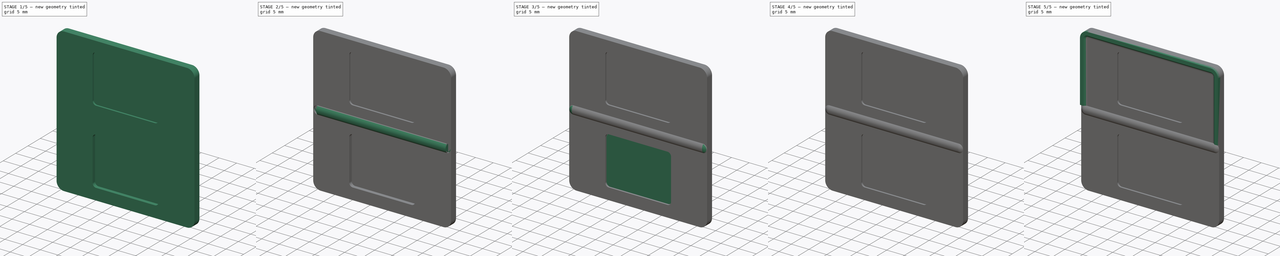
[diagram: build sequence overview — one tinted view per stage of 5, left to right]
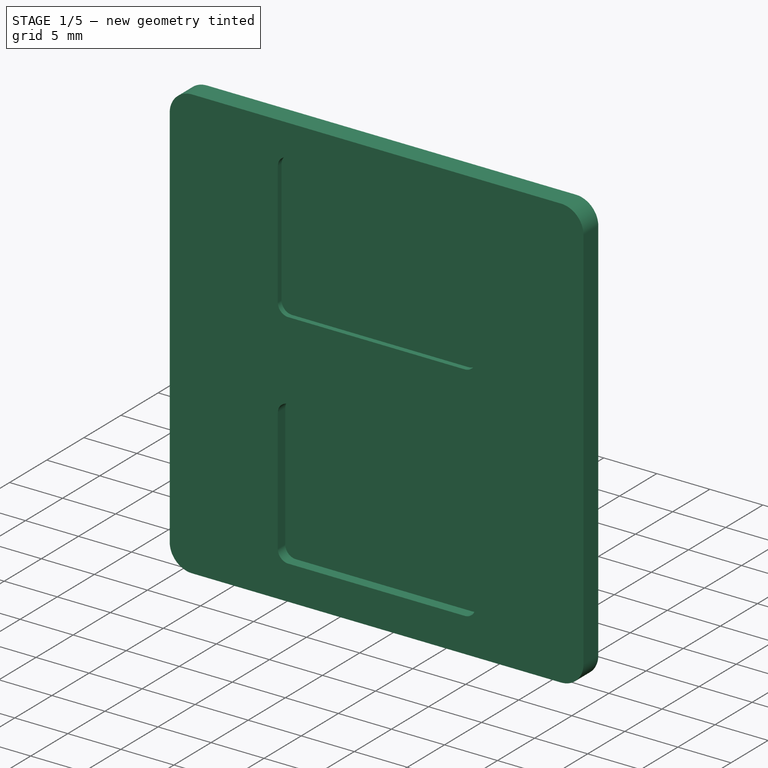
[diagram: stage 1 of 5 — iso view after this stage's code; geometry added in this stage tinted green]
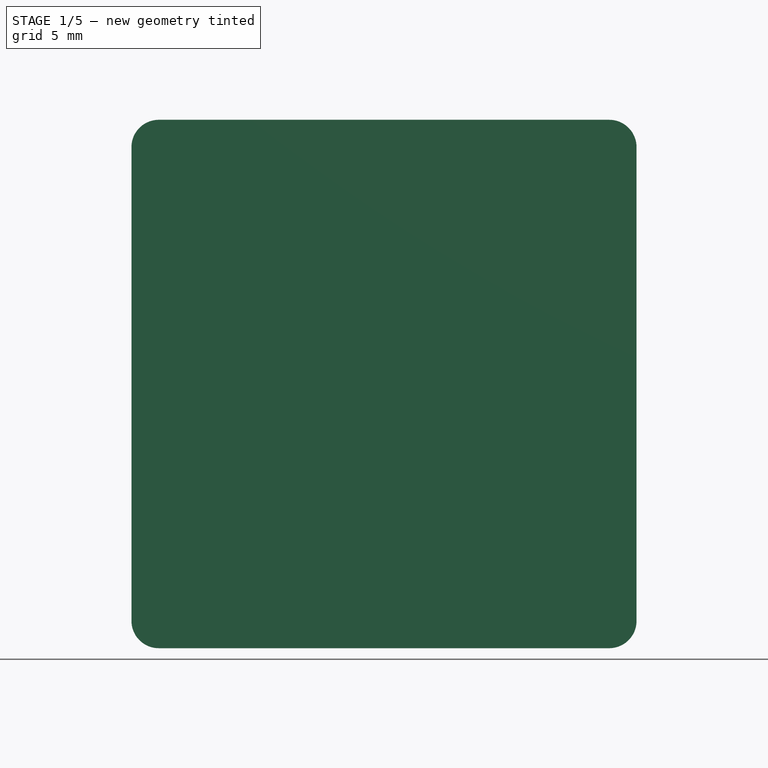
[diagram: stage 1 of 5 — front view after this stage's code; geometry added in this stage tinted green]
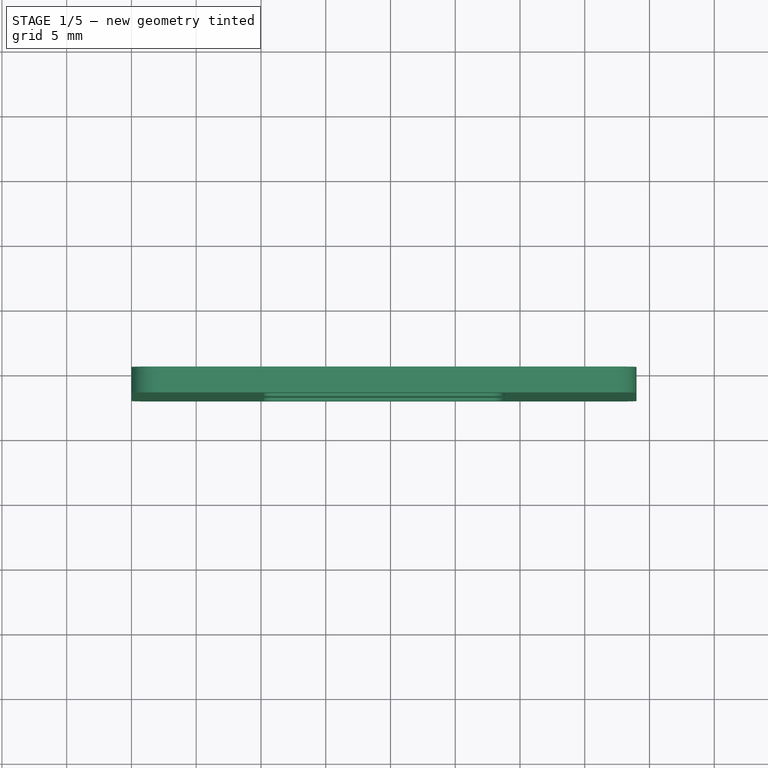
[diagram: stage 1 of 5 — top view after this stage's code; geometry added in this stage tinted green]
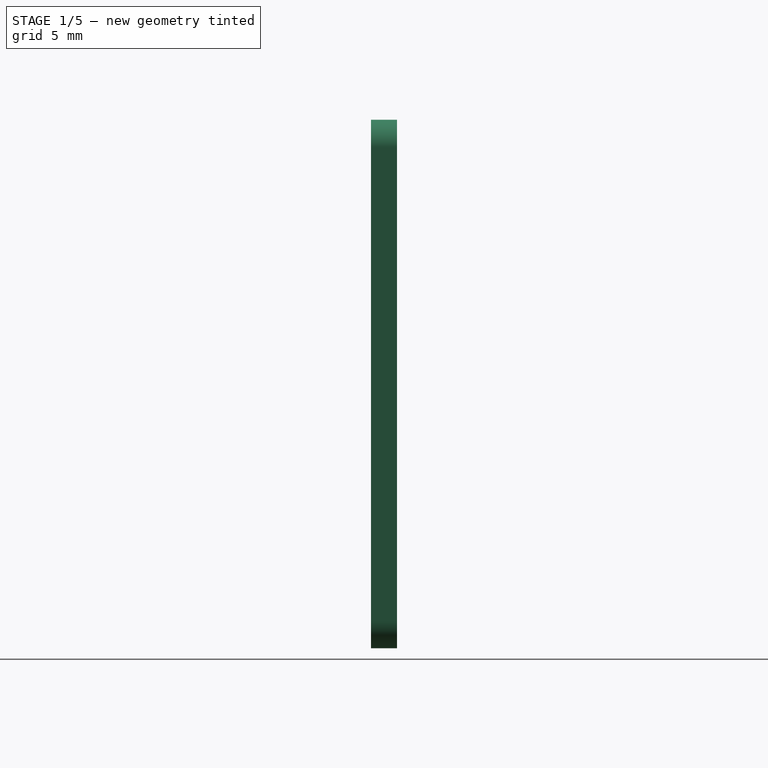
[diagram: stage 1 of 5 — right view after this stage's code; geometry added in this stage tinted green]
FCSTD DOCUMENT  (FreeCAD 0.20R29177 +426 (Git))
Label: DS Lite Icon
License: All rights reserved
LicenseURL: http://en.wikipedia.org/wiki/All_rights_reserved
objects: Sketcher::SketchObject×30, PartDesign::Pad×12, PartDesign::Revolution×10, PartDesign::Pocket×9, PartDesign::Body×3, PartDesign::FeatureBase×2, App::Part×1
note: 97 computed .brp shape members not serialized (recipe doc carries the construction recipe); baked Part::Feature solids carry a one-line shape summary decoded from their .brp

FEATURE [Sketcher::SketchObject] Sketch
  FullyConstrained = true
  MapMode = 5
  Placement = pos=(0,0,0) rot=(1,0,0;1.5708rad)
  Support = -> [XZ_Plane001]
  sketch-geometry (12):
    g0: LineSegment StartX=0 StartY=0 StartZ=0 EndX=39 EndY=0 EndZ=0
    g1: LineSegment StartX=39 StartY=0 StartZ=0 EndX=39 EndY=40.8 EndZ=0
    g2: LineSegment StartX=39 StartY=40.8 StartZ=0 EndX=0 EndY=40.8 EndZ=0
    g3: LineSegment StartX=0 StartY=40.8 StartZ=0 EndX=0 EndY=0 EndZ=0
    g4: LineSegment StartX=2.11 StartY=40.8 StartZ=0 EndX=36.89 EndY=40.8 EndZ=0
    g5: LineSegment StartX=39 StartY=38.69 StartZ=0 EndX=39 EndY=2.11 EndZ=0
    g6: LineSegment StartX=36.89 StartY=0 StartZ=0 EndX=2.11 EndY=0 EndZ=0
    g7: LineSegment StartX=0 StartY=2.11 StartZ=0 EndX=0 EndY=38.69 EndZ=0
    g8: ArcOfCircle CenterX=36.89 CenterY=2.11 CenterZ=0 NormalX=0 NormalY=0 NormalZ=1 AngleXU=0 Radius=2.11 StartAngle=4.71239 EndAngle=6.28319
    g9: ArcOfCircle CenterX=2.11 CenterY=2.11 CenterZ=0 NormalX=0 NormalY=0 NormalZ=1 AngleXU=0 Radius=2.11 StartAngle=3.14159 EndAngle=4.71239
    g10: ArcOfCircle CenterX=2.11 CenterY=38.69 CenterZ=0 NormalX=0 NormalY=0 NormalZ=1 AngleXU=0 Radius=2.11 StartAngle=1.5708 EndAngle=3.14159
    g11: ArcOfCircle CenterX=36.89 CenterY=38.69 CenterZ=0 NormalX=0 NormalY=0 NormalZ=1 AngleXU=0 Radius=2.11 StartAngle=9e-16 EndAngle=1.5708
  constraints (31):
    c: Coincident(g0,g1)
    c: Coincident(g1,g2)
    c: Coincident(g2,g3)
    c: Coincident(g3,g0)
    c: Horizontal(g0)
    c: Horizontal(g2)
    c: Vertical(g1)
    c: Vertical(g3)
    c: Coincident(g0,g-1)
    c: Distance(g0) = 39
    c: Distance(g1) = 40.8
    c: Horizontal(g4)
    c: Horizontal(g6)
    c: Vertical(g5)
    c: Vertical(g7)
    c: Tangent(g6,g8) = 1.5708
    c: Tangent(g5,g8) = 1.5708
    c: Tangent(g6,g9) = 1.5708
    c: Tangent(g7,g9) = 1.5708
    c: Tangent(g7,g10) = 1.5708
    c: Tangent(g4,g10) = 1.5708
    c: Tangent(g4,g11) = 1.5708
    c: Tangent(g5,g11) = 1.5708
    c: PointOnObject(g4,g2)
    c: PointOnObject(g7,g3)
    c: PointOnObject(g5,g1)
    c: PointOnObject(g6,g0)
    c: Equal(g8,g9)
    c: Equal(g10,g9)
    c: Equal(g11,g10)
    c: Radius(g11) = 2.11
FEATURE [PartDesign::Pad] Pad
  Direction = (0,-1,2e-16)
  Length = 2
  Length2 = 10
  Placement = pos=(0,0,0) rot=(1,0,0;1.5708rad)
  Profile = -> Sketch
  ReferenceAxis = -> Sketch [N_Axis]
  Type = 0
FEATURE [Sketcher::SketchObject] Sketch001
  ExternalGeometry = -> [Pad]
  FullyConstrained = true
  MapMode = 5
  Placement = pos=(0,-2,9e-16) rot=(1,0,0;1.5708rad)
  Support = -> [Pad]
  sketch-geometry (26):
    g0: LineSegment StartX=10.19 StartY=37.85 StartZ=0 EndX=28.81 EndY=37.85 EndZ=0
    g1: LineSegment StartX=28.81 StartY=37.85 StartZ=0 EndX=28.81 EndY=24.25 EndZ=0
    g2: LineSegment StartX=28.81 StartY=24.25 StartZ=0 EndX=10.19 EndY=24.25 EndZ=0
    g3: LineSegment StartX=10.19 StartY=24.25 StartZ=0 EndX=10.19 EndY=37.85 EndZ=0
    g4: LineSegment StartX=10.19 StartY=16.85 StartZ=0 EndX=28.81 EndY=16.85 EndZ=0
    g5: LineSegment StartX=28.81 StartY=16.85 StartZ=0 EndX=28.81 EndY=3.25 EndZ=0
    g6: LineSegment StartX=28.81 StartY=3.25 StartZ=0 EndX=10.19 EndY=3.25 EndZ=0
    g7: LineSegment StartX=10.19 StartY=3.25 StartZ=0 EndX=10.19 EndY=16.85 EndZ=0
    g8: LineSegment StartX=19.5 StartY=3.25 StartZ=0 EndX=19.5 EndY=0 EndZ=0
    g9: LineSegment StartX=19.5 StartY=37.85 StartZ=0 EndX=19.5 EndY=40.8 EndZ=0
    g10: LineSegment StartX=11.19 StartY=16.85 StartZ=0 EndX=27.81 EndY=16.85 EndZ=0
    g11: LineSegment StartX=28.81 StartY=15.85 StartZ=0 EndX=28.81 EndY=4.25 EndZ=0
    g12: LineSegment StartX=27.81 StartY=3.25 StartZ=0 EndX=11.19 EndY=3.25 EndZ=0
    g13: LineSegment StartX=10.19 StartY=4.25 StartZ=0 EndX=10.19 EndY=15.85 EndZ=0
    g14: LineSegment StartX=11.19 StartY=37.85 StartZ=0 EndX=27.81 EndY=37.85 EndZ=0
    g15: LineSegment StartX=28.81 StartY=36.85 StartZ=0 EndX=28.81 EndY=25.25 EndZ=0
    g16: LineSegment StartX=27.81 StartY=24.25 StartZ=0 EndX=11.19 EndY=24.25 EndZ=0
    g17: LineSegment StartX=10.19 StartY=25.25 StartZ=0 EndX=10.19 EndY=36.85 EndZ=0
    g18: ArcOfCircle CenterX=11.19 CenterY=36.85 CenterZ=0 NormalX=0 NormalY=0 NormalZ=1 AngleXU=0 Radius=1 StartAngle=1.5708 EndAngle=3.14159
    g19: ArcOfCircle CenterX=27.81 CenterY=36.85 CenterZ=0 NormalX=0 NormalY=0 NormalZ=1 AngleXU=0 Radius=1 StartAngle=-2.7e-15 EndAngle=1.5708
    g20: ArcOfCircle CenterX=27.81 CenterY=25.25 CenterZ=0 NormalX=0 NormalY=0 NormalZ=1 AngleXU=0 Radius=1 StartAngle=4.71239 EndAngle=6.28319
    g21: ArcOfCircle CenterX=11.19 CenterY=25.25 CenterZ=0 NormalX=0 NormalY=0 NormalZ=1 AngleXU=0 Radius=1 StartAngle=3.14159 EndAngle=4.71239
    g22: ArcOfCircle CenterX=11.19 CenterY=15.85 CenterZ=0 NormalX=0 NormalY=0 NormalZ=1 AngleXU=0 Radius=1 StartAngle=1.5708 EndAngle=3.14159
    g23: ArcOfCircle CenterX=27.81 CenterY=15.85 CenterZ=0 NormalX=0 NormalY=0 NormalZ=1 AngleXU=0 Radius=1 StartAngle=2e-16 EndAngle=1.5708
    g24: ArcOfCircle CenterX=27.81 CenterY=4.25 CenterZ=0 NormalX=0 NormalY=0 NormalZ=1 AngleXU=0 Radius=1 StartAngle=4.71239 EndAngle=6.28319
    g25: ArcOfCircle CenterX=11.19 CenterY=4.25 CenterZ=0 NormalX=0 NormalY=0 NormalZ=1 AngleXU=0 Radius=1 StartAngle=3.14159 EndAngle=4.71239
  constraints (68):
    c: Coincident(g0,g1)
    c: Coincident(g1,g2)
    c: Coincident(g2,g3)
    c: Coincident(g3,g0)
    c: Horizontal(g0)
    c: Horizontal(g2)
    c: Vertical(g1)
    c: Vertical(g3)
    c: Coincident(g4,g5)
    c: Coincident(g5,g6)
    c: Coincident(g6,g7)
    c: Coincident(g7,g4)
    c: Horizontal(g4)
    c: Horizontal(g6)
    c: Vertical(g5)
    c: Vertical(g7)
    c: Vertical(g8)
    c: Vertical(g9)
    c: Symmetric(g-3,g-3,g9)
    c: Symmetric(g0,g0,g9)
    c: Symmetric(g6,g5,g8)
    c: Symmetric(g-4,g-4,g8)
    c: Distance(g6) = 18.62
    c: Distance(g5) = 13.6
    c: Distance(g8) = 3.25
    c: Horizontal(g10)
    c: Horizontal(g12)
    c: Vertical(g11)
    c: Vertical(g13)
    c: Equal(g5,g1)
    c: Equal(g2,g4)
    c: Distance(g9) = 2.95
    c: Horizontal(g14)
    c: Horizontal(g16)
    c: Vertical(g15)
    c: Vertical(g17)
    c: Tangent(g17,g18) = 1.5708
    c: Tangent(g14,g18) = 1.5708
    c: Tangent(g14,g19) = 1.5708
    c: Tangent(g15,g19) = 1.5708
    c: Tangent(g15,g20) = 1.5708
    c: Tangent(g16,g20) = 1.5708
    c: Tangent(g16,g21) = 1.5708
    c: Tangent(g17,g21) = 1.5708
    c: Equal(g18,g21)
    c: Equal(g21,g20)
    c: Equal(g20,g19)
    c: PointOnObject(g14,g0)
    c: PointOnObject(g17,g3)
    c: PointOnObject(g15,g1)
    c: PointOnObject(g16,g2)
    c: Radius(g20) = 1
    c: Tangent(g13,g22) = 1.5708
    c: Tangent(g10,g22) = 1.5708
    c: Tangent(g10,g23) = 1.5708
    c: Tangent(g11,g23) = 1.5708
    c: Tangent(g11,g24) = 1.5708
    c: Tangent(g12,g24) = 1.5708
    c: Tangent(g12,g25) = 1.5708
    c: Tangent(g13,g25) = 1.5708
    c: Equal(g22,g23)
    c: Equal(g23,g24)
    c: Equal(g24,g25)
    c: Equal(g22,g20)
    c: PointOnObject(g10,g4)
    c: PointOnObject(g13,g7)
    c: PointOnObject(g12,g6)
    c: PointOnObject(g11,g5)
FEATURE [PartDesign::Pocket] Pocket
  BaseFeature = -> Pad
  Direction = (0,1,-2e-16)
  Length = 1
  Length2 = 5
  Placement = pos=(0,0,0) rot=(1,0,0;1.5708rad)
  Profile = -> Sketch001
  ReferenceAxis = -> Sketch001 [N_Axis]
  Type = 0
FEATURE [PartDesign::Body] Body  label="Base"
  Group = -> [Sketch,Pad,Sketch001,Pocket]
  Origin = -> Origin001
  Tip = -> Pocket
FEATURE [PartDesign::FeatureBase] Clone
  BaseFeature = -> Body
FEATURE [Sketcher::SketchObject] Sketch002
  ExternalGeometry = -> [Clone]
  FullyConstrained = true
  MapMode = 5
  Placement = pos=(0,0,0) rot=(0,0.707107,0.707107;3.14159rad)
  Support = -> [Clone]
  sketch-geometry (6):
    g0: LineSegment StartX=-39 StartY=2.11 StartZ=0 EndX=-39 EndY=20.73 EndZ=0
    g1: LineSegment StartX=0 StartY=2.11 StartZ=0 EndX=0 EndY=20.73 EndZ=0
    g2: LineSegment StartX=-39 StartY=20.73 StartZ=0 EndX=0 EndY=20.73 EndZ=0
    g3: LineSegment StartX=0 StartY=20.73 StartZ=0 EndX=0 EndY=40.8 EndZ=0
    g4: LineSegment StartX=0 StartY=40.8 StartZ=0 EndX=-39 EndY=40.8 EndZ=0
    g5: LineSegment StartX=-39 StartY=40.8 StartZ=0 EndX=-39 EndY=20.73 EndZ=0
  constraints (17):
    c: Coincident(g0,g-3)
    c: Vertical(g0)
    c: Coincident(g1,g-4)
    c: PointOnObject(g1,g-2)
    c: Distance(g1) = 18.62
    c: Equal(g0,g1)
    c: Coincident(g2,g3)
    c: Coincident(g3,g4)
    c: Coincident(g4,g5)
    c: Coincident(g5,g2)
    c: Horizontal(g2)
    c: Horizontal(g4)
    c: Vertical(g3)
    c: Vertical(g5)
    c: Coincident(g2,g0)
    c: PointOnObject(g3,g-2)
    c: PointOnObject(g-5,g4)
FEATURE [PartDesign::Pocket] Pocket001
  BaseFeature = -> Clone
  Direction = (0,-1,2e-16)
  Length = 1.5
  Length2 = 5
  Profile = -> Sketch002
  ReferenceAxis = -> Sketch002 [N_Axis]
  Type = 0
FEATURE [Sketcher::SketchObject] Sketch003
  ExternalGeometry = -> [Pocket001]
  FullyConstrained = true
  MapMode = 5
  Placement = pos=(0,4.6e-15,20.73) rot=(0,0,1;0rad)
  Support = -> [Pocket001]
  sketch-geometry (6):
    g0: LineSegment StartX=0 StartY=-1.5 StartZ=0 EndX=1.5 EndY=0 EndZ=0
    g1: LineSegment StartX=39 StartY=-1.5 StartZ=0 EndX=37.5 EndY=0 EndZ=0
    g2: LineSegment StartX=39 StartY=-1.5 StartZ=0 EndX=0 EndY=-1.5 EndZ=0
    g3: LineSegment StartX=1.5 StartY=0 StartZ=0 EndX=37.5 EndY=0 EndZ=0
    g4: LineSegment StartX=0 StartY=0 StartZ=0 EndX=1.5 EndY=0 EndZ=0
    g5: LineSegment StartX=37.5 StartY=0 StartZ=0 EndX=39 EndY=0 EndZ=0
  constraints (15):
    c: PointOnObject(g0,g-2)
    c: PointOnObject(g0,g-3)
    c: Coincident(g1,g-4)
    c: PointOnObject(g1,g-3)
    c: Coincident(g2,g1)
    c: Coincident(g2,g-4)
    c: Coincident(g3,g0)
    c: Coincident(g3,g1)
    c: Equal(g0,g1)
    c: Distance(g3) = 36
    c: Coincident(g4,g-3)
    c: Coincident(g4,g0)
    c: Coincident(g5,g1)
    c: Coincident(g5,g-3)
    c: Equal(g4,g5)
FEATURE [PartDesign::Pad] Pad001
  BaseFeature = -> Pocket001
  Direction = (0,2e-16,1)
  Length = 10
  Length2 = 10
  Offset = -2.11
  Profile = -> Sketch003
  ReferenceAxis = -> Sketch003 [N_Axis]
  Refine = true
  Type = 3
  UpToFace = -> Pocket001 [Face12]
FEATURE [PartDesign::Body] Body001  label="Key Chain"
  BaseFeature = -> Body
  Group = -> [Clone,Sketch002,Pocket001,Sketch003,Pad001,Sketch004,Revolution,Sketch005,Revolution001,Pad002,Sketch006,Pocket002,Sketch007,Pad003,Sketch008,Pocket003,Sketch009,Pad004,Sketch010,Revolution002,Sketch011,Revolution003,Sketch012,Pad005,Sketch013,Pad006,Pad007,Sketch014,Pad008,Sketch015,Sketch016,Revolution004,Pocket004,Sketch017,Sketch018,Revolution005,Pocket005,Sketch019,Sketch020,Revolution006,+16 more]
  Origin = -> Origin002
  Placement = pos=(75,0,0) rot=(0,0,1;0rad)
  Tip = -> Pad011
FEATURE [PartDesign::FeatureBase] Clone001
  BaseFeature = -> Body
FEATURE [Sketcher::SketchObject] Sketch029
  ExternalGeometry = -> [Clone001]
  FullyConstrained = true
  MapMode = 5
  Placement = pos=(0,-2,0) rot=(1,0,0;1.5708rad)
  Support = -> [Clone001]
  sketch-geometry (9):
    g0: LineSegment StartX=0 StartY=20.4 StartZ=0 EndX=39 EndY=20.4 EndZ=0
    g1: LineSegment StartX=1.29 StartY=21.59 StartZ=0 EndX=37.71 EndY=21.59 EndZ=0
    g2: LineSegment StartX=37.71 StartY=21.59 StartZ=0 EndX=37.71 EndY=19.21 EndZ=0
    g3: LineSegment StartX=37.71 StartY=19.21 StartZ=0 EndX=1.29 EndY=19.21 EndZ=0
    g4: LineSegment StartX=1.29 StartY=19.21 StartZ=0 EndX=1.29 EndY=21.59 EndZ=0
    g5: ArcOfCircle CenterX=37.71 CenterY=20.4 CenterZ=0 NormalX=0 NormalY=0 NormalZ=1 AngleXU=0 Radius=1.19 StartAngle=4.71239 EndAngle=7.85398
    g6: ArcOfCircle CenterX=1.29 CenterY=20.4 CenterZ=0 NormalX=0 NormalY=0 NormalZ=1 AngleXU=0 Radius=1.19 StartAngle=1.5708 EndAngle=4.71239
    g7: LineSegment StartX=0 StartY=20.4 StartZ=0 EndX=0.1 EndY=20.4 EndZ=0
    g8: LineSegment StartX=39 StartY=20.4 StartZ=0 EndX=38.9 EndY=20.4 EndZ=0
  constraints (24):
    c: Horizontal(g0)
    c: Symmetric(g-4,g-4,g0)
    c: Coincident(g1,g2)
    c: Coincident(g2,g3)
    c: Coincident(g3,g4)
    c: Coincident(g4,g1)
    c: Horizontal(g1)
    c: Horizontal(g3)
    c: Vertical(g4)
    c: Symmetric(g1,g2,g0)
    c: Distance(g2) = 2.38
    c: Coincident(g5,g3)
    c: Tangent(g5,g1) = 1.5708
    c: Coincident(g6,g3)
    c: Tangent(g6,g1) = 1.5708
    c: PointOnObject(g0,g-3)
    c: Coincident(g7,g0)
    c: PointOnObject(g7,g6)
    c: Distance(g7) = 0.1
    c: Horizontal(g7)
    c: Coincident(g8,g0)
    c: PointOnObject(g8,g5)
    c: Distance(g8) = 0.1
    c: Horizontal(g8)
FEATURE [PartDesign::Pocket] Pocket008
  BaseFeature = -> Clone001
  Direction = (0,1,-2e-16)
  Length = 0.5
  Length2 = 5
  Profile = -> Sketch029
  ReferenceAxis = -> Sketch029 [N_Axis]
  Refine = true
  Type = 0
FEATURE [PartDesign::Body] Body002  label="Icon"
  Group = -> [Clone001,Sketch029,Pocket008]
  Origin = -> Origin003
  Placement = pos=(0,0,0) rot=(1,0,0;-1.5708rad)
  Tip = -> Pocket008
FEATURE [App::Part] Part  label="DS Lite"
  Group = -> [Body,Body001,Body002]
  Origin = -> Origin
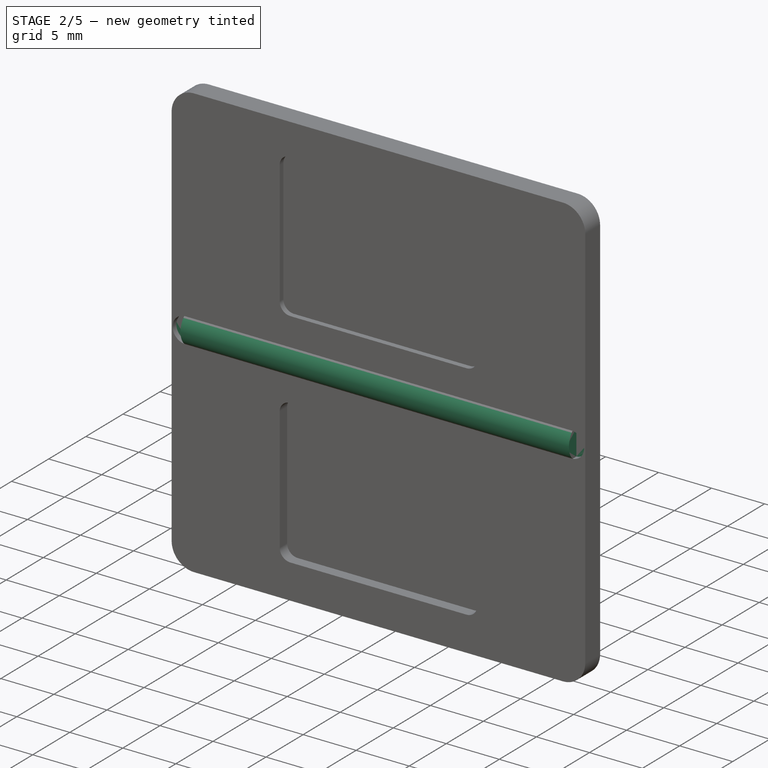
[diagram: stage 2 of 5 — iso view after this stage's code; geometry added in this stage tinted green]
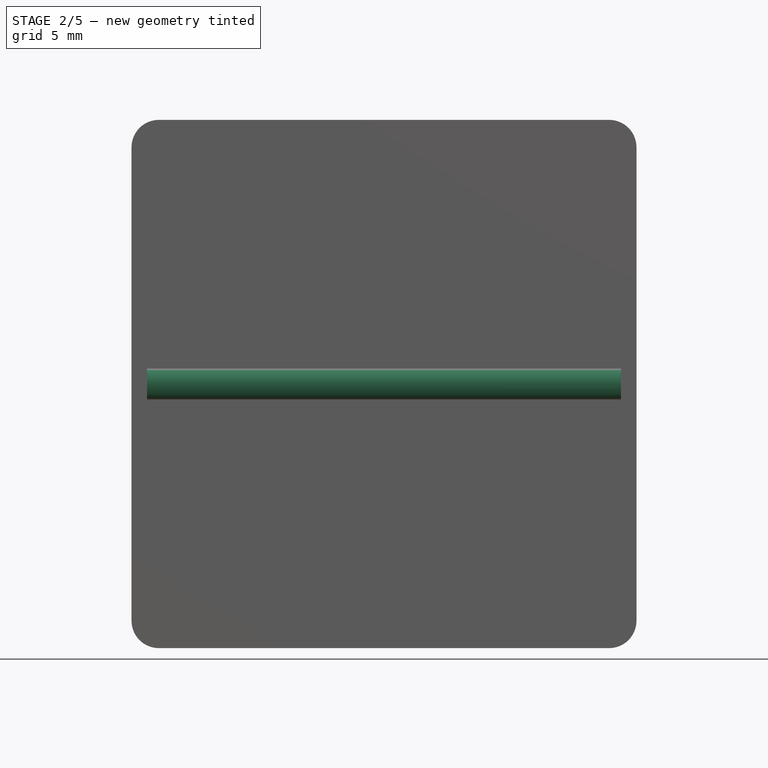
[diagram: stage 2 of 5 — front view after this stage's code; geometry added in this stage tinted green]
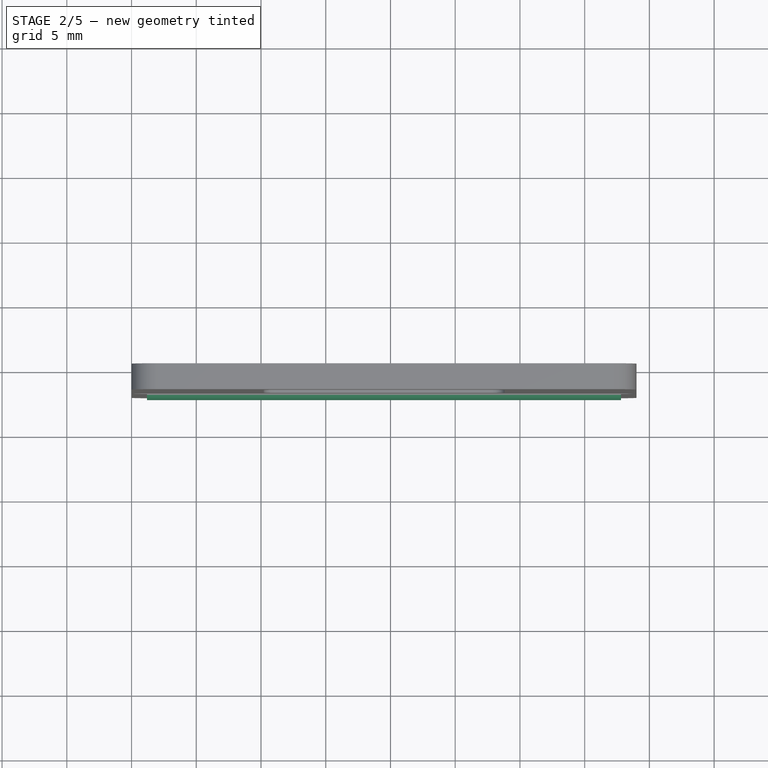
[diagram: stage 2 of 5 — top view after this stage's code; geometry added in this stage tinted green]
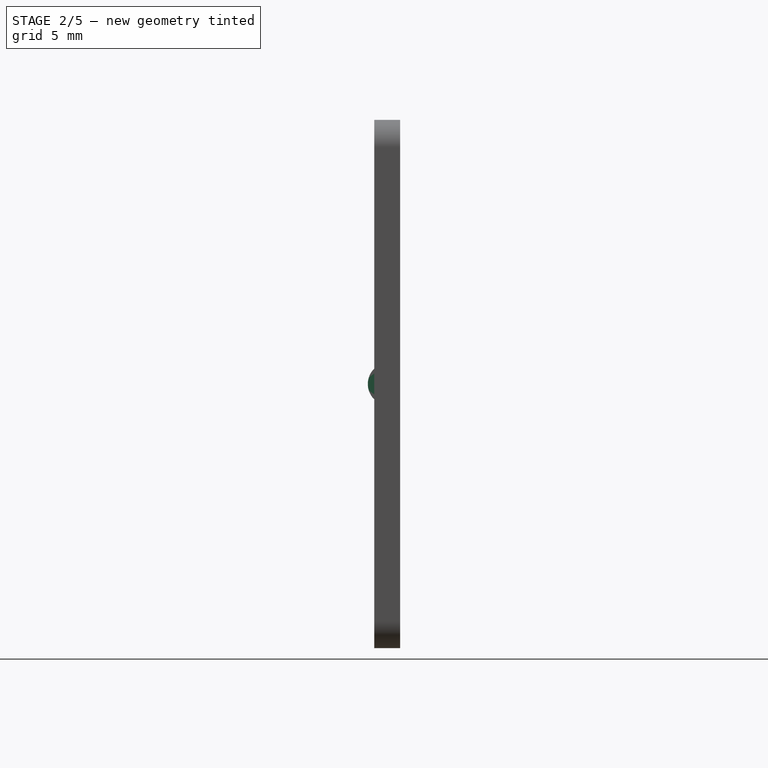
[diagram: stage 2 of 5 — right view after this stage's code; geometry added in this stage tinted green]
FEATURE [Sketcher::SketchObject] Sketch004
  ExternalGeometry = -> [Pad001]
  FullyConstrained = true
  MapMode = 5
  Placement = pos=(0,8.5e-15,38.69) rot=(0,0,1;0rad)
  Support = -> [Pad001]
  sketch-geometry (4):
    g0: LineSegment StartX=36.89 StartY=-1.5 StartZ=0 EndX=39 EndY=-1.5 EndZ=0
    g1: LineSegment StartX=39 StartY=-1.5 StartZ=0 EndX=37.5 EndY=0 EndZ=0
    g2: LineSegment StartX=36.89 StartY=-1.5 StartZ=0 EndX=36.89 EndY=0 EndZ=0
    g3: LineSegment StartX=36.89 StartY=0 StartZ=0 EndX=37.5 EndY=0 EndZ=0
  constraints (10):
    c: Coincident(g0,g-3)
    c: Horizontal(g0)
    c: Coincident(g1,g0)
    c: Distance(g0) = 2.11
    c: Coincident(g2,g0)
    c: PointOnObject(g2,g-1)
    c: Vertical(g2)
    c: Coincident(g3,g2)
    c: Coincident(g3,g1)
    c: Coincident(g-3,g1)
FEATURE [PartDesign::Revolution] Revolution
  Angle = 90
  Axis = (0,1,-2e-16)
  Base = (36.89,-1.5,38.69)
  BaseFeature = -> Pad001
  Profile = -> Sketch004
  ReferenceAxis = -> Sketch004 [Edge4]
  Reversed = true
FEATURE [Sketcher::SketchObject] Sketch005
  ExternalGeometry = -> [Revolution]
  FullyConstrained = true
  MapMode = 5
  Placement = pos=(0,8.5e-15,38.69) rot=(0,0,1;0rad)
  Support = -> [Revolution]
  sketch-geometry (4):
    g0: LineSegment StartX=0 StartY=-1.5 StartZ=0 EndX=2.11 EndY=-1.5 EndZ=0
    g1: LineSegment StartX=2.11 StartY=-1.5 StartZ=0 EndX=2.11 EndY=0 EndZ=0
    g2: LineSegment StartX=2.11 StartY=0 StartZ=0 EndX=1.5 EndY=0 EndZ=0
    g3: LineSegment StartX=1.5 StartY=0 StartZ=0 EndX=0 EndY=-1.5 EndZ=0
  constraints (9):
    c: Coincident(g0,g-4)
    c: Coincident(g0,g-3)
    c: Coincident(g1,g0)
    c: PointOnObject(g1,g-1)
    c: Vertical(g1)
    c: Coincident(g2,g1)
    c: Coincident(g2,g-4)
    c: Coincident(g3,g2)
    c: Coincident(g3,g0)
FEATURE [PartDesign::Revolution] Revolution001
  Angle = 90
  Axis = (0,1,-2e-16)
  Base = (2.11,-1.5,38.69)
  BaseFeature = -> Revolution
  Profile = -> Sketch005
  ReferenceAxis = -> Sketch005 [Edge2]
FEATURE [PartDesign::Pad] Pad002
  BaseFeature = -> Revolution001
  Direction = (-1,-2e-16,1e-16)
  Length = 10
  Length2 = 10
  Profile = -> Revolution001 [Face37]
  Refine = true
  Type = 3
  UpToFace = -> Revolution001 [Face35]
FEATURE [Sketcher::SketchObject] Sketch006
  ExternalGeometry = -> [Pad002]
  FullyConstrained = true
  MapMode = 5
  Placement = pos=(0,-2,0) rot=(1,0,0;1.5708rad)
  Support = -> [Pad002]
  sketch-geometry (10):
    g0: LineSegment StartX=0 StartY=21.59 StartZ=0 EndX=39 EndY=21.59 EndZ=0
    g1: LineSegment StartX=39 StartY=21.59 StartZ=0 EndX=39 EndY=19.21 EndZ=0
    g2: LineSegment StartX=39 StartY=19.21 StartZ=0 EndX=0 EndY=19.21 EndZ=0
    g3: LineSegment StartX=0 StartY=19.21 StartZ=0 EndX=0 EndY=21.59 EndZ=0
    g4: LineSegment StartX=19.5 StartY=40.8 StartZ=0 EndX=19.5 EndY=21.59 EndZ=0
    g5: LineSegment StartX=19.5 StartY=19.21 StartZ=0 EndX=19.5 EndY=0 EndZ=0
    g6: LineSegment StartX=0 StartY=21.59 StartZ=0 EndX=39 EndY=21.59 EndZ=0
    g7: LineSegment StartX=39 StartY=21.59 StartZ=0 EndX=39 EndY=0 EndZ=0
    g8: LineSegment StartX=39 StartY=0 StartZ=0 EndX=0 EndY=0 EndZ=0
    g9: LineSegment StartX=0 StartY=0 StartZ=0 EndX=0 EndY=21.59 EndZ=0
  constraints (28):
    c: Coincident(g0,g1)
    c: Coincident(g1,g2)
    c: Coincident(g2,g3)
    c: Coincident(g3,g0)
    c: Horizontal(g0)
    c: Horizontal(g2)
    c: Vertical(g1)
    c: Vertical(g3)
    c: PointOnObject(g0,g-2)
    c: PointOnObject(g0,g-5)
    c: Distance(g1) = 2.38
    c: Symmetric(g-4,g-4,g4)
    c: Symmetric(g0,g0,g4)
    c: PointOnObject(g5,g-3)
    c: Vertical(g5)
    c: Symmetric(g2,g1,g5)
    c: Equal(g4,g5)
    c: Coincident(g6,g7)
    c: Coincident(g7,g8)
    c: Coincident(g8,g9)
    c: Coincident(g9,g6)
    c: Horizontal(g6)
    c: Horizontal(g8)
    c: Vertical(g7)
    c: Vertical(g9)
    c: Coincident(g6,g0)
    c: PointOnObject(g-5,g7)
    c: PointOnObject(g-3,g8)
FEATURE [PartDesign::Pocket] Pocket002
  BaseFeature = -> Pad002
  Direction = (0,1,-2e-16)
  Length = 0.5
  Length2 = 5
  Profile = -> Sketch006
  ReferenceAxis = -> Sketch006 [N_Axis]
  Type = 0
FEATURE [Sketcher::SketchObject] Sketch007
  ExternalGeometry = -> [Pocket002]
  FullyConstrained = true
  MapMode = 5
  Placement = pos=(0,-1.5,3e-16) rot=(1,0,0;1.5708rad)
  Support = -> [Pocket002]
  sketch-geometry (10):
    g0: LineSegment StartX=0 StartY=21.59 StartZ=0 EndX=39 EndY=21.59 EndZ=0
    g1: LineSegment StartX=39 StartY=21.59 StartZ=0 EndX=39 EndY=19.21 EndZ=0
    g2: LineSegment StartX=39 StartY=19.21 StartZ=0 EndX=0 EndY=19.21 EndZ=0
    g3: LineSegment StartX=0 StartY=19.21 StartZ=0 EndX=0 EndY=21.59 EndZ=0
    g4: ArcOfCircle CenterX=1.19 CenterY=20.4 CenterZ=0 NormalX=0 NormalY=0 NormalZ=1 AngleXU=0 Radius=1.19 StartAngle=1.5708 EndAngle=4.71239
    g5: ArcOfCircle CenterX=37.81 CenterY=20.4 CenterZ=0 NormalX=0 NormalY=0 NormalZ=1 AngleXU=0 Radius=1.19 StartAngle=4.71239 EndAngle=7.85398
    g6: LineSegment StartX=1.19 StartY=21.59 StartZ=0 EndX=37.81 EndY=21.59 EndZ=0
    g7: LineSegment StartX=37.81 StartY=19.21 StartZ=0 EndX=1.19 EndY=19.21 EndZ=0
    g8: LineSegment StartX=37.81 StartY=21.59 StartZ=0 EndX=37.81 EndY=19.21 EndZ=0
    g9: LineSegment StartX=1.19 StartY=21.59 StartZ=0 EndX=1.19 EndY=19.21 EndZ=0
  constraints (24):
    c: Coincident(g0,g1)
    c: Coincident(g1,g2)
    c: Coincident(g2,g3)
    c: Coincident(g3,g0)
    c: Horizontal(g2)
    c: Vertical(g1)
    c: Vertical(g3)
    c: Coincident(g0,g-3)
    c: Coincident(g-3,g0)
    c: Distance(g1) = 2.38
    c: PointOnObject(g4,g2)
    c: PointOnObject(g4,g0)
    c: Tangent(g4,g3)
    c: PointOnObject(g5,g0)
    c: PointOnObject(g5,g2)
    c: Tangent(g5,g1)
    c: Tangent(g7,g4) = 1.5708
    c: Tangent(g6,g4) = 1.5708
    c: Tangent(g6,g5) = 1.5708
    c: Tangent(g7,g5) = 1.5708
    c: Coincident(g8,g6)
    c: Coincident(g8,g7)
    c: Coincident(g9,g6)
    c: Coincident(g9,g7)
FEATURE [PartDesign::Pad] Pad003
  BaseFeature = -> Pocket002
  Direction = (0,-1,2e-16)
  Length = 1
  Length2 = 10
  Profile = -> Sketch007
  ReferenceAxis = -> Sketch007 [N_Axis]
  Type = 0
FEATURE [Sketcher::SketchObject] Sketch008
  ExternalGeometry = -> [Pad003]
  FullyConstrained = true
  MapMode = 5
  Placement = pos=(1.19,0,-7e-16) rot=(0.57735,-0.57735,-0.57735;2.0944rad)
  Support = -> [Pad003]
  sketch-geometry (4):
    g0: LineSegment StartX=2 StartY=21.59 StartZ=0 EndX=3 EndY=21.59 EndZ=0
    g1: LineSegment StartX=3 StartY=21.59 StartZ=0 EndX=3 EndY=19.21 EndZ=0
    g2: LineSegment StartX=3 StartY=19.21 StartZ=0 EndX=2 EndY=19.21 EndZ=0
    g3: ArcOfCircle CenterX=0.8339 CenterY=20.4 CenterZ=0 NormalX=0 NormalY=0 NormalZ=1 AngleXU=0 Radius=1.6661 StartAngle=5.48764 EndAngle=7.07873
  constraints (10):
    c: Coincident(g0,g-3)
    c: Coincident(g1,g0)
    c: Vertical(g1)
    c: Coincident(g2,g1)
    c: Horizontal(g2)
    c: Symmetric(g0,g0,g-4)
    c: Symmetric(g2,g1,g-4)
    c: Coincident(g3,g0)
    c: Coincident(g3,g2)
    c: Tangent(g3,g-4)
FEATURE [PartDesign::Pocket] Pocket003
  BaseFeature = -> Pad003
  Direction = (1,-1e-16,-6e-16)
  Length = 200
  Length2 = 5
  Profile = -> Sketch008
  ReferenceAxis = -> Sketch008 [N_Axis]
  Type = 0
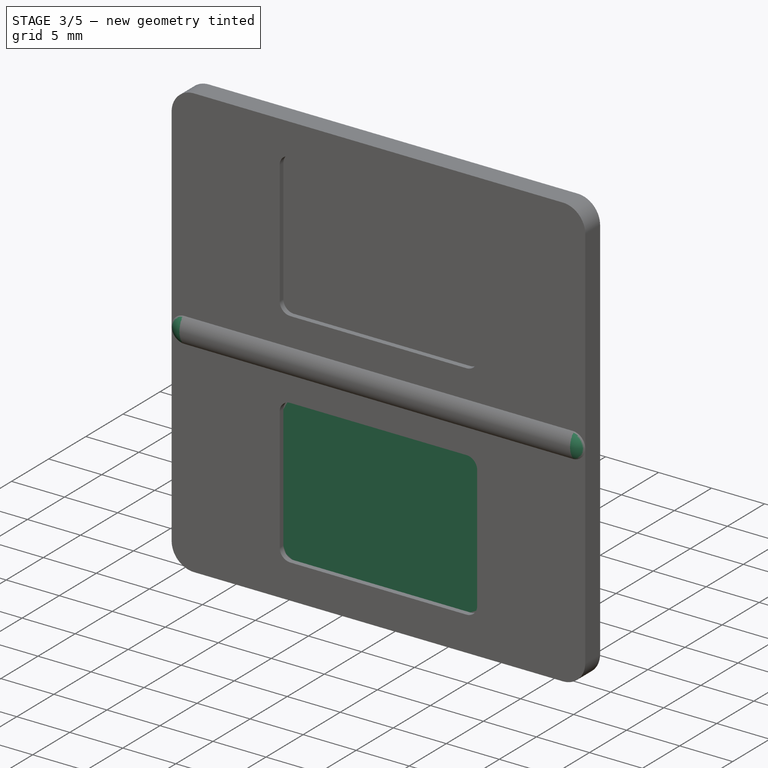
[diagram: stage 3 of 5 — iso view after this stage's code; geometry added in this stage tinted green]
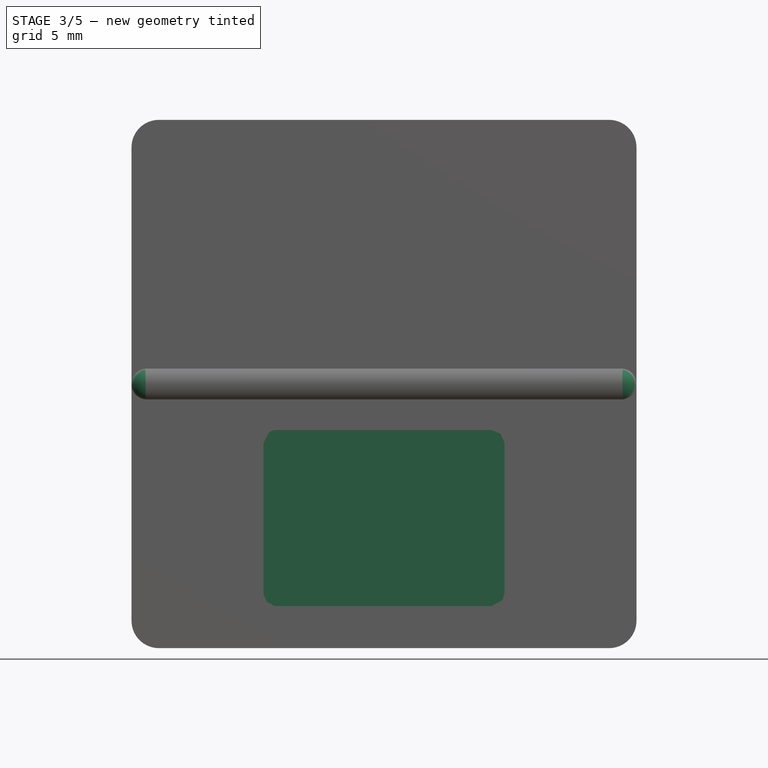
[diagram: stage 3 of 5 — front view after this stage's code; geometry added in this stage tinted green]
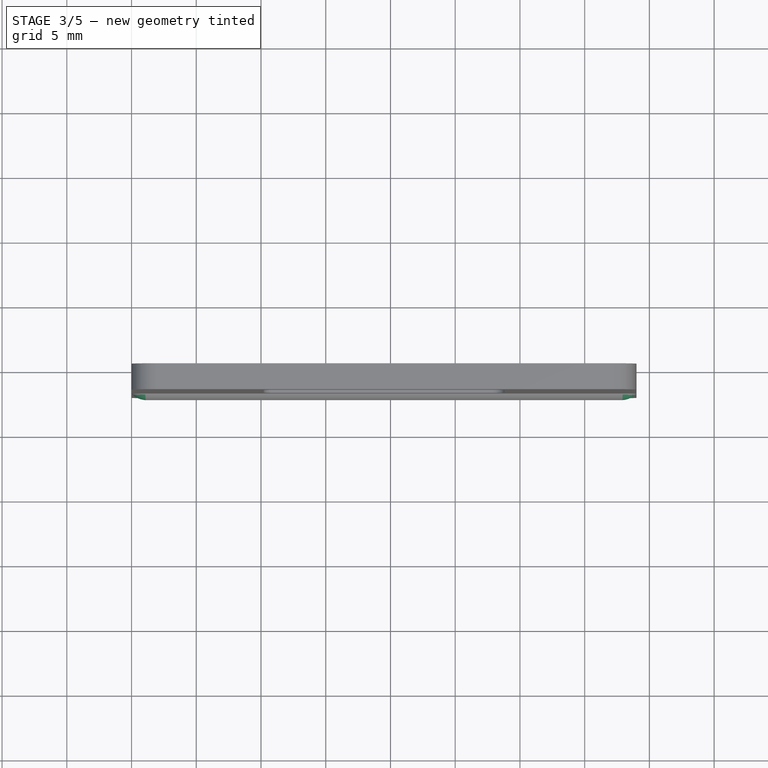
[diagram: stage 3 of 5 — top view after this stage's code; geometry added in this stage tinted green]
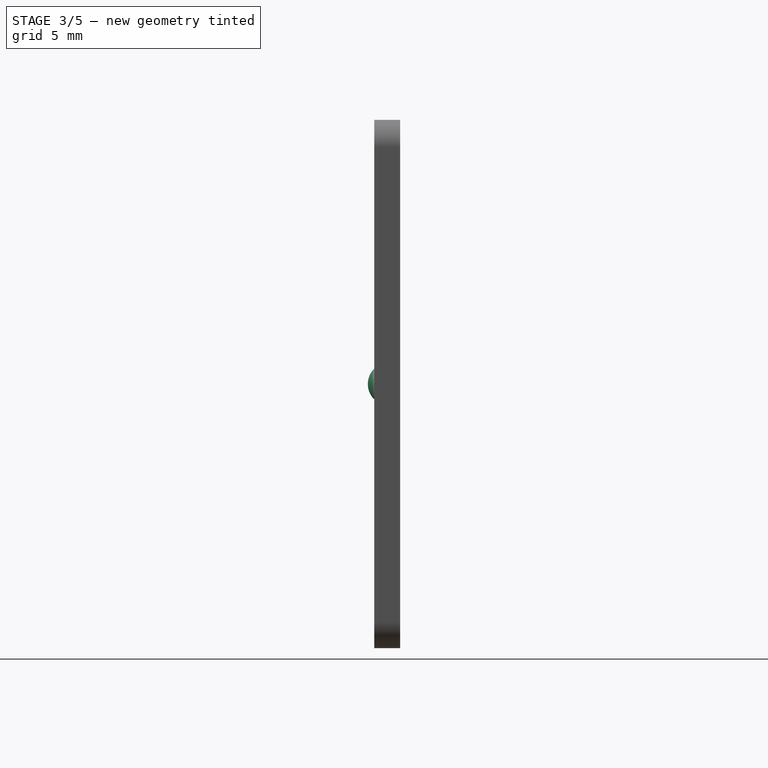
[diagram: stage 3 of 5 — right view after this stage's code; geometry added in this stage tinted green]
FEATURE [Sketcher::SketchObject] Sketch009
  ExternalGeometry = -> [Pocket003]
  FullyConstrained = true
  MapMode = 5
  Placement = pos=(0,-1.5,3e-16) rot=(1,0,0;1.5708rad)
  Support = -> [Pocket003]
  sketch-geometry (4):
    g0: ArcOfCircle CenterX=1.19 CenterY=20.4 CenterZ=0 NormalX=0 NormalY=0 NormalZ=1 AngleXU=0 Radius=1.19 StartAngle=1.5708 EndAngle=4.71239
    g1: LineSegment StartX=1.19 StartY=21.59 StartZ=0 EndX=1.19 EndY=19.21 EndZ=0
    g2: ArcOfCircle CenterX=37.81 CenterY=20.4 CenterZ=0 NormalX=0 NormalY=0 NormalZ=1 AngleXU=0 Radius=1.19 StartAngle=4.71239 EndAngle=7.85398
    g3: LineSegment StartX=37.81 StartY=21.59 StartZ=0 EndX=37.81 EndY=19.21 EndZ=0
  constraints (11):
    c: Coincident(g0,g-3)
    c: Coincident(g0,g-3)
    c: Tangent(g0,g-4)
    c: PointOnObject(g1,g0)
    c: Coincident(g1,g0)
    c: Vertical(g1)
    c: Coincident(g2,g-8)
    c: Coincident(g2,g-8)
    c: Tangent(g2,g-7)
    c: Coincident(g3,g2)
    c: Coincident(g3,g2)
FEATURE [PartDesign::Pad] Pad004
  BaseFeature = -> Pocket003
  Direction = (0,-1,2e-16)
  Length = 0.5
  Length2 = 10
  Profile = -> Sketch009
  ReferenceAxis = -> Sketch009 [N_Axis]
  Type = 0
FEATURE [Sketcher::SketchObject] Sketch010
  ExternalGeometry = -> [Pad004]
  FullyConstrained = true
  MapMode = 5
  Placement = pos=(1.19,0,-7e-16) rot=(0.57735,-0.57735,-0.57735;2.0944rad)
  Support = -> [Pad004]
  sketch-geometry (3):
    g0: LineSegment StartX=2.5 StartY=20.4 StartZ=0 EndX=2 EndY=20.4 EndZ=0
    g1: LineSegment StartX=2 StartY=20.4 StartZ=0 EndX=2 EndY=19.21 EndZ=0
    g2: ArcOfCircle CenterX=0.8339 CenterY=20.4 CenterZ=0 NormalX=0 NormalY=0 NormalZ=1 AngleXU=0 Radius=1.6661 StartAngle=5.48764 EndAngle=6.28319
  constraints (8):
    c: Coincident(g0,g-3)
    c: PointOnObject(g0,g-4)
    c: Horizontal(g0)
    c: Coincident(g1,g0)
    c: Coincident(g1,g-4)
    c: Coincident(g2,g1)
    c: Coincident(g2,g0)
    c: Equal(g2,g-3)
FEATURE [PartDesign::Revolution] Revolution002
  Angle = 180
  Axis = (2e-16,1,1e-16)
  Base = (1.19,-2.5,20.4)
  BaseFeature = -> Pad004
  Profile = -> Sketch010
  ReferenceAxis = -> Sketch010 [Edge1]
FEATURE [Sketcher::SketchObject] Sketch011
  ExternalGeometry = -> [Revolution002]
  FullyConstrained = true
  MapMode = 5
  Placement = pos=(37.81,0,0) rot=(0.57735,0.57735,0.57735;2.0944rad)
  Support = -> [Revolution002]
  sketch-geometry (3):
    g0: LineSegment StartX=-2 StartY=19.21 StartZ=0 EndX=-2 EndY=20.4 EndZ=0
    g1: LineSegment StartX=-2 StartY=20.4 StartZ=0 EndX=-2.5 EndY=20.4 EndZ=0
    g2: ArcOfCircle CenterX=-0.8339 CenterY=20.4 CenterZ=0 NormalX=0 NormalY=0 NormalZ=1 AngleXU=0 Radius=1.6661 StartAngle=3.14159 EndAngle=3.93713
  constraints (8):
    c: Coincident(g0,g-3)
    c: Vertical(g0)
    c: Coincident(g1,g0)
    c: Coincident(g1,g-3)
    c: Horizontal(g1)
    c: Coincident(g2,g1)
    c: Coincident(g2,g0)
    c: Equal(g2,g-3)
FEATURE [PartDesign::Revolution] Revolution003
  Angle = 180
  Axis = (0,-1,0)
  Base = (37.81,-2,20.4)
  BaseFeature = -> Revolution002
  Profile = -> Sketch011
  ReferenceAxis = -> Sketch011 [Edge2]
  Refine = true
FEATURE [Sketcher::SketchObject] Sketch012
  ExternalGeometry = -> [Revolution003]
  FullyConstrained = true
  MapMode = 5
  Placement = pos=(0,-1.8e-15,0) rot=(0,0.707107,0.707107;3.14159rad)
  Support = -> [Revolution003]
  sketch-geometry (4):
    g0: ArcOfCircle CenterX=-36.89 CenterY=20.73 CenterZ=0 NormalX=0 NormalY=0 NormalZ=1 AngleXU=0 Radius=2.11 StartAngle=1.5708 EndAngle=3.14159
    g1: ArcOfCircle CenterX=-2.11 CenterY=20.73 CenterZ=0 NormalX=0 NormalY=0 NormalZ=1 AngleXU=0 Radius=2.11 StartAngle=5e-16 EndAngle=1.5708
    g2: LineSegment StartX=-2.11 StartY=22.84 StartZ=0 EndX=-36.89 EndY=22.84 EndZ=0
    g3: LineSegment StartX=-39 StartY=20.73 StartZ=0 EndX=0 EndY=20.73 EndZ=0
  constraints (8):
    c: Horizontal(g2)
    c: Tangent(g2,g0) = -1.5708
    c: Tangent(g0,g-4) = -1.5708
    c: Tangent(g1,g-3) = -1.5708
    c: Tangent(g2,g1) = -1.5708
    c: Equal(g0,g-5)
    c: Coincident(g3,g0)
    c: Coincident(g3,g1)
FEATURE [PartDesign::Pad] Pad005
  BaseFeature = -> Revolution003
  Direction = (0,1,-2e-16)
  Length = 1.5
  Length2 = 10
  Profile = -> Sketch012
  ReferenceAxis = -> Sketch012 [N_Axis]
  Refine = true
  Reversed = true
  Type = 0
FEATURE [Sketcher::SketchObject] Sketch013
  ExternalGeometry = -> [Pad005]
  FullyConstrained = true
  MapMode = 5
  Placement = pos=(0,-1.5,3e-16) rot=(1,0,0;1.5708rad)
  Support = -> [Pad005]
  sketch-geometry (20):
    g0: LineSegment StartX=11.19 StartY=16.85 StartZ=0 EndX=27.81 EndY=16.85 EndZ=0
    g1: LineSegment StartX=11.19 StartY=17.85 StartZ=0 EndX=27.81 EndY=17.85 EndZ=0
    g2: LineSegment StartX=29.81 StartY=15.85 StartZ=0 EndX=29.81 EndY=4.25 EndZ=0
    g3: LineSegment StartX=27.81 StartY=2.25 StartZ=0 EndX=11.19 EndY=2.25 EndZ=0
    g4: LineSegment StartX=9.19 StartY=4.25 StartZ=0 EndX=9.19 EndY=15.85 EndZ=0
    g5: LineSegment StartX=10.19 StartY=15.85 StartZ=0 EndX=10.19 EndY=4.25 EndZ=0
    g6: LineSegment StartX=11.19 StartY=3.25 StartZ=0 EndX=27.81 EndY=3.25 EndZ=0
    g7: LineSegment StartX=28.81 StartY=4.25 StartZ=0 EndX=28.81 EndY=15.85 EndZ=0
    g8: LineSegment StartX=11.19 StartY=17.85 StartZ=0 EndX=11.19 EndY=16.85 EndZ=0
    g9: LineSegment StartX=9.19 StartY=15.85 StartZ=0 EndX=10.19 EndY=15.85 EndZ=0
    g10: LineSegment StartX=28.81 StartY=4.25 StartZ=0 EndX=29.81 EndY=4.25 EndZ=0
    g11: LineSegment StartX=27.81 StartY=3.25 StartZ=0 EndX=27.81 EndY=2.25 EndZ=0
    g12: ArcOfCircle CenterX=11.19 CenterY=15.85 CenterZ=0 NormalX=0 NormalY=0 NormalZ=1 AngleXU=0 Radius=1 StartAngle=1.5708 EndAngle=3.14159
    g13: ArcOfCircle CenterX=11.19 CenterY=4.25 CenterZ=0 NormalX=0 NormalY=0 NormalZ=1 AngleXU=0 Radius=1 StartAngle=3.14159 EndAngle=4.71239
    g14: ArcOfCircle CenterX=27.81 CenterY=4.25 CenterZ=0 NormalX=0 NormalY=0 NormalZ=1 AngleXU=0 Radius=1 StartAngle=4.71239 EndAngle=6.28319
    g15: ArcOfCircle CenterX=27.81 CenterY=15.85 CenterZ=0 NormalX=0 NormalY=0 NormalZ=1 AngleXU=0 Radius=1 StartAngle=0 EndAngle=1.5708
    g16: ArcOfCircle CenterX=27.81 CenterY=15.85 CenterZ=0 NormalX=0 NormalY=0 NormalZ=1 AngleXU=0 Radius=2 StartAngle=-1.048e-13 EndAngle=1.5708
    g17: ArcOfCircle CenterX=11.19 CenterY=15.85 CenterZ=0 NormalX=0 NormalY=0 NormalZ=1 AngleXU=0 Radius=2 StartAngle=1.5708 EndAngle=3.14159
    g18: ArcOfCircle CenterX=11.19 CenterY=4.25 CenterZ=0 NormalX=0 NormalY=0 NormalZ=1 AngleXU=0 Radius=2 StartAngle=3.14159 EndAngle=4.71239
    g19: ArcOfCircle CenterX=27.81 CenterY=4.25 CenterZ=0 NormalX=0 NormalY=0 NormalZ=1 AngleXU=0 Radius=2 StartAngle=4.71239 EndAngle=6.28319
  constraints (44):
    c: Coincident(g0,g-3)
    c: Coincident(g0,g-6)
    c: Horizontal(g1)
    c: Vertical(g2)
    c: Horizontal(g3)
    c: Vertical(g4)
    c: Coincident(g5,g-3)
    c: Coincident(g5,g-4)
    c: Coincident(g6,g-4)
    c: Coincident(g6,g-5)
    c: Coincident(g7,g-5)
    c: Coincident(g7,g-6)
    c: Coincident(g8,g1)
    c: Coincident(g8,g0)
    c: Vertical(g8)
    c: Coincident(g9,g4)
    c: Coincident(g9,g5)
    c: Horizontal(g9)
    c: Coincident(g10,g7)
    c: Coincident(g10,g2)
    c: Coincident(g11,g6)
    c: Coincident(g11,g3)
    c: Vertical(g11)
    c: Horizontal(g10)
    c: Equal(g11,g9)
    c: Coincident(g12,g5)
    c: Coincident(g13,g6)
    c: Coincident(g14,g6)
    c: Coincident(g15,g0)
    c: Tangent(g13,g5) = -1.5708
    c: Tangent(g15,g7) = -1.5708
    c: Tangent(g12,g0) = 1.5708
    c: Tangent(g17,g4) = 1.5708
    c: Tangent(g17,g1) = 1.5708
    c: Tangent(g16,g1) = 1.5708
    c: Tangent(g16,g2) = 1.5708
    c: Tangent(g14,g7) = -1.5708
    c: Tangent(g18,g4) = 1.5708
    c: Tangent(g18,g3) = 1.5708
    c: Tangent(g19,g3) = 1.5708
    c: Tangent(g19,g2) = 1.5708
    c: Equal(g1,g3)
    c: Equal(g18,g19)
    c: Distance(g8) = 1
FEATURE [PartDesign::Pad] Pad006
  BaseFeature = -> Pad005
  Direction = (0,-1,2e-16)
  Length = 0.5
  Length2 = 10
  Profile = -> Sketch013
  ReferenceAxis = -> Sketch013 [N_Axis]
  Type = 0
FEATURE [PartDesign::Pad] Pad007
  BaseFeature = -> Pad006
  Direction = (0,-1,0)
  Length = 0.5
  Length2 = 10
  Profile = -> Pad006 [Face65]
  Refine = true
  Type = 0
FEATURE [Sketcher::SketchObject] Sketch014
  ExternalGeometry = -> [Pad007]
  FullyConstrained = true
  MapMode = 5
  Placement = pos=(0,-1.5,3e-16) rot=(1,0,0;1.5708rad)
  Support = -> [Pad007]
  sketch-geometry (16):
    g0: LineSegment StartX=9.19 StartY=15.85 StartZ=0 EndX=8.19 EndY=15.85 EndZ=0
    g1: LineSegment StartX=8.19 StartY=15.85 StartZ=0 EndX=8.19 EndY=4.25 EndZ=0
    g2: LineSegment StartX=8.19 StartY=4.25 StartZ=0 EndX=9.19 EndY=4.25 EndZ=0
    g3: LineSegment StartX=9.19 StartY=4.25 StartZ=0 EndX=9.19 EndY=15.85 EndZ=0
    g4: LineSegment StartX=11.19 StartY=17.85 StartZ=0 EndX=27.81 EndY=17.85 EndZ=0
    g5: LineSegment StartX=27.81 StartY=17.85 StartZ=0 EndX=27.81 EndY=18.85 EndZ=0
    g6: LineSegment StartX=27.81 StartY=18.85 StartZ=0 EndX=11.19 EndY=18.85 EndZ=0
    g7: LineSegment StartX=11.19 StartY=18.85 StartZ=0 EndX=11.19 EndY=17.85 EndZ=0
    g8: LineSegment StartX=29.81 StartY=15.85 StartZ=0 EndX=30.81 EndY=15.85 EndZ=0
    g9: LineSegment StartX=30.81 StartY=15.85 StartZ=0 EndX=30.81 EndY=4.25 EndZ=0
    g10: LineSegment StartX=30.81 StartY=4.25 StartZ=0 EndX=29.81 EndY=4.25 EndZ=0
    g11: LineSegment StartX=29.81 StartY=4.25 StartZ=0 EndX=29.81 EndY=15.85 EndZ=0
    g12: LineSegment StartX=11.19 StartY=2.25 StartZ=0 EndX=27.81 EndY=2.25 EndZ=0
    g13: LineSegment StartX=27.81 StartY=2.25 StartZ=0 EndX=27.81 EndY=1.25 EndZ=0
    g14: LineSegment StartX=27.81 StartY=1.25 StartZ=0 EndX=11.19 EndY=1.25 EndZ=0
    g15: LineSegment StartX=11.19 StartY=1.25 StartZ=0 EndX=11.19 EndY=2.25 EndZ=0
  constraints (40):
    c: Coincident(g0,g1)
    c: Coincident(g1,g2)
    c: Coincident(g2,g3)
    c: Coincident(g3,g0)
    c: Horizontal(g0)
    c: Horizontal(g2)
    c: Vertical(g1)
    c: Coincident(g0,g-3)
    c: Coincident(g2,g-3)
    c: Coincident(g4,g5)
    c: Coincident(g5,g6)
    c: Coincident(g6,g7)
    c: Coincident(g7,g4)
    c: Horizontal(g6)
    c: Vertical(g5)
    c: Vertical(g7)
    c: Coincident(g4,g-6)
    c: Coincident(g4,g-6)
    c: Coincident(g8,g9)
    c: Coincident(g9,g10)
    c: Coincident(g10,g11)
    c: Coincident(g11,g8)
    c: Horizontal(g8)
    c: Horizontal(g10)
    c: Vertical(g9)
    c: Coincident(g8,g-5)
    c: Coincident(g10,g-5)
    c: Coincident(g12,g13)
    c: Coincident(g13,g14)
    c: Coincident(g14,g15)
    c: Coincident(g15,g12)
    c: Horizontal(g14)
    c: Vertical(g13)
    c: Vertical(g15)
    c: Coincident(g12,g-4)
    c: Coincident(g-4,g12)
    c: Equal(g13,g10)
    c: Equal(g8,g5)
    c: Equal(g7,g0)
    c: Distance(g0) = 1
FEATURE [PartDesign::Pad] Pad008
  BaseFeature = -> Pad007
  Direction = (0,-1,2e-16)
  Length = 0.5
  Length2 = 10
  Profile = -> Sketch014
  ReferenceAxis = -> Sketch014 [N_Axis]
  Type = 0
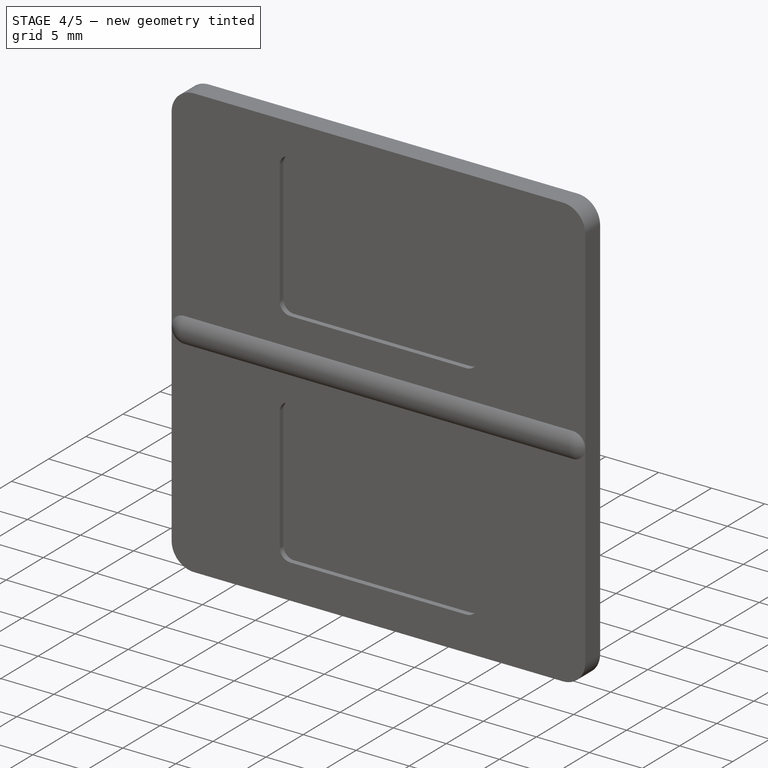
[diagram: stage 4 of 5 — iso view after this stage's code; geometry added in this stage tinted green]
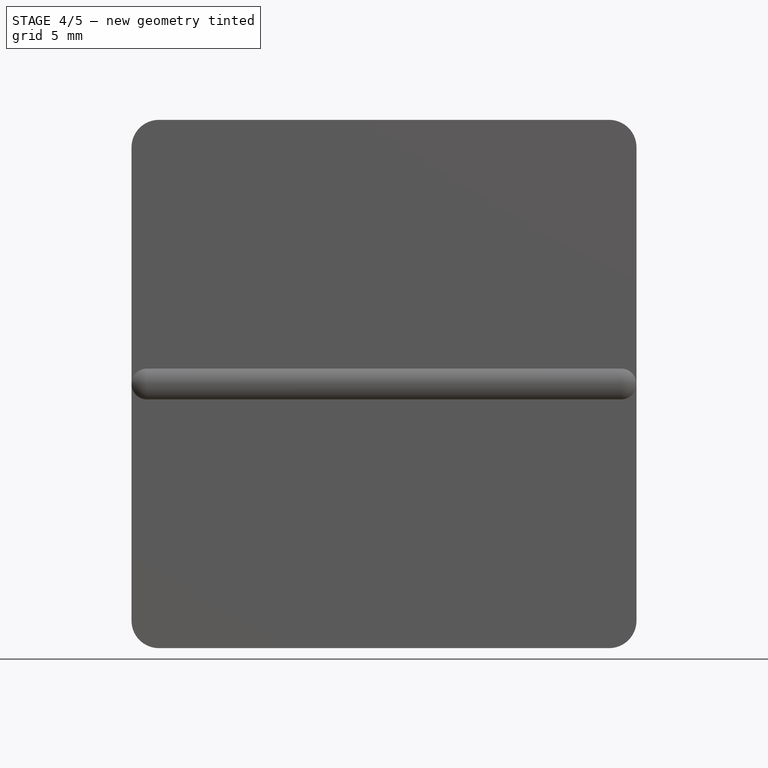
[diagram: stage 4 of 5 — front view after this stage's code; geometry added in this stage tinted green]
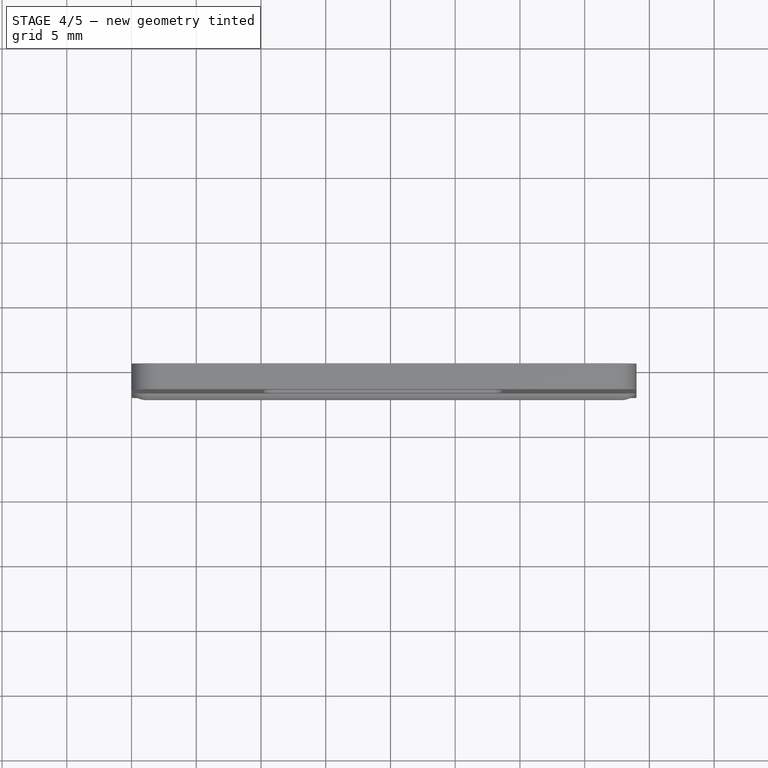
[diagram: stage 4 of 5 — top view after this stage's code; geometry added in this stage tinted green]
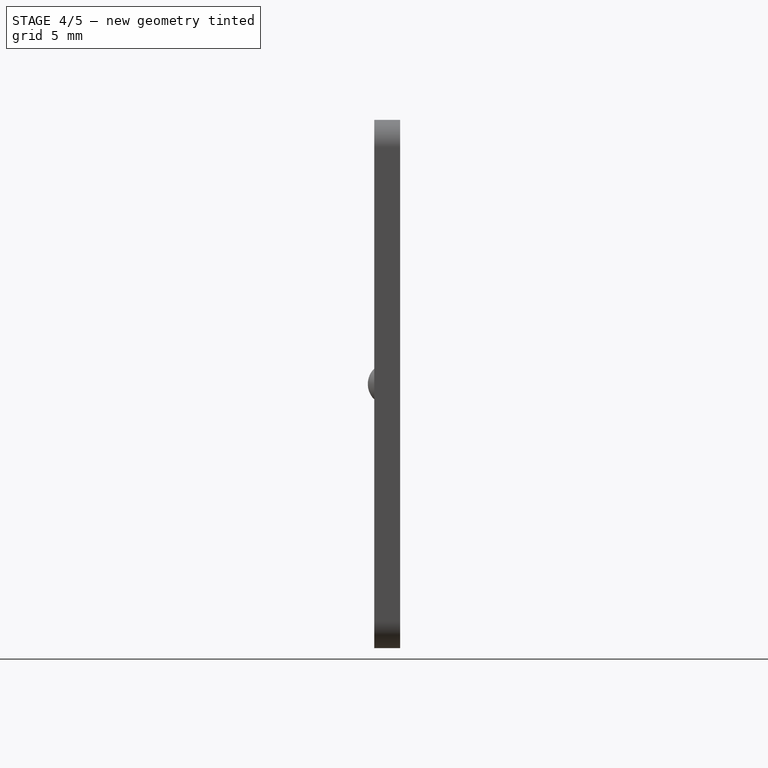
[diagram: stage 4 of 5 — right view after this stage's code; geometry added in this stage tinted green]
FEATURE [Sketcher::SketchObject] Sketch015
  ExternalGeometry = -> [Pad008]
  FullyConstrained = true
  MapMode = 5
  Placement = pos=(0,9e-16,4.25) rot=(1,0,0;3.14159rad)
  Support = -> [Pad008]
  sketch-geometry (3):
    g0: ArcOfCircle CenterX=8.19 CenterY=2.75 CenterZ=0 NormalX=0 NormalY=0 NormalZ=1 AngleXU=0 Radius=1.25 StartAngle=4.71239 EndAngle=5.63969
    g1: LineSegment StartX=8.19 StartY=1.5 StartZ=0 EndX=9.19 EndY=1.5 EndZ=0
    g2: LineSegment StartX=9.19 StartY=1.5 StartZ=0 EndX=9.19 EndY=2 EndZ=0
  constraints (7):
    c: Coincident(g0,g-4)
    c: Coincident(g0,g-3)
    c: Tangent(g0,g-4)
    c: Coincident(g1,g0)
    c: Coincident(g1,g-4)
    c: Coincident(g2,g1)
    c: Coincident(g2,g0)
FEATURE [Sketcher::SketchObject] Sketch016  label="Pivot-LD-LL"
  ExternalGeometry = -> [Pad008]
  FullyConstrained = true
  MapMode = 5
  Placement = pos=(0,9e-16,4.25) rot=(1,0,0;3.14159rad)
  Support = -> [Pad008]
  sketch-geometry (1):
    g0: LineSegment StartX=11.19 StartY=2 StartZ=0 EndX=11.19 EndY=1.5 EndZ=0
  constraints (2):
    c: Coincident(g0,g-3)
    c: Coincident(g0,g-4)
FEATURE [PartDesign::Revolution] Revolution004
  Angle = 90
  Axis = (0,1,-2e-16)
  Base = (11.19,-2,4.25)
  BaseFeature = -> Pad008
  Profile = -> Sketch015
  ReferenceAxis = -> Sketch016 [Edge1]
  Reversed = true
FEATURE [PartDesign::Pocket] Pocket004
  BaseFeature = -> Revolution004
  Direction = (0,2e-16,1)
  Length = 11.6
  Length2 = 5
  Profile = -> Revolution004 [Face59]
  Type = 0
FEATURE [Sketcher::SketchObject] Sketch017
  ExternalGeometry = -> [Pocket004]
  FullyConstrained = true
  MapMode = 5
  Placement = pos=(11.19,0,0) rot=(0.57735,-0.57735,-0.57735;2.0944rad)
  Support = -> [Pocket004]
  sketch-geometry (3):
    g0: ArcOfCircle CenterX=2.75 CenterY=18.85 CenterZ=0 NormalX=0 NormalY=0 NormalZ=1 AngleXU=0 Radius=1.25 StartAngle=3.14159 EndAngle=4.06889
    g1: LineSegment StartX=1.5 StartY=18.85 StartZ=0 EndX=1.5 EndY=17.85 EndZ=0
    g2: LineSegment StartX=1.5 StartY=17.85 StartZ=0 EndX=2 EndY=17.85 EndZ=0
  constraints (7):
    c: Coincident(g0,g-4)
    c: Coincident(g0,g-3)
    c: Tangent(g0,g-4)
    c: Coincident(g1,g0)
    c: Coincident(g1,g-4)
    c: Coincident(g2,g1)
    c: Coincident(g2,g0)
FEATURE [Sketcher::SketchObject] Sketch018  label="Pivot-LD-UL"
  ExternalGeometry = -> [Pocket004]
  FullyConstrained = true
  MapMode = 5
  Placement = pos=(0,3.5e-15,15.85) rot=(0,0,1;0rad)
  Support = -> [Pocket004]
  sketch-geometry (1):
    g0: LineSegment StartX=11.19 StartY=-2 StartZ=0 EndX=11.19 EndY=-1.5 EndZ=0
  constraints (2):
    c: Coincident(g0,g-3)
    c: Coincident(g0,g-3)
FEATURE [PartDesign::Revolution] Revolution005
  Angle = 90
  Axis = (0,1,-2e-16)
  Base = (11.19,-2,15.85)
  BaseFeature = -> Pocket004
  Profile = -> Sketch017
  ReferenceAxis = -> Sketch018 [Edge1]
  Reversed = true
FEATURE [PartDesign::Pocket] Pocket005
  BaseFeature = -> Revolution005
  Direction = (1,0,0)
  Length = 16.62
  Length2 = 5
  Profile = -> Revolution005 [Face57]
  Type = 0
FEATURE [Sketcher::SketchObject] Sketch019
  ExternalGeometry = -> [Pocket005]
  FullyConstrained = true
  MapMode = 5
  Placement = pos=(0,3.5e-15,15.85) rot=(0,0,1;0rad)
  Support = -> [Pocket005]
  sketch-geometry (3):
    g0: ArcOfCircle CenterX=30.81 CenterY=-2.74999 CenterZ=0 NormalX=0 NormalY=0 NormalZ=1 AngleXU=0 Radius=1.24999 StartAngle=1.57079 EndAngle=2.49809
    g1: LineSegment StartX=29.81 StartY=-2 StartZ=0 EndX=29.81 EndY=-1.5 EndZ=0
    g2: LineSegment StartX=29.81 StartY=-1.5 StartZ=0 EndX=30.81 EndY=-1.5 EndZ=0
  constraints (7):
    c: Coincident(g0,g-3)
    c: Coincident(g0,g-4)
    c: Tangent(g0,g-4)
    c: Coincident(g1,g0)
    c: Coincident(g1,g-4)
    c: Coincident(g2,g1)
    c: Coincident(g2,g0)
FEATURE [Sketcher::SketchObject] Sketch020  label="Pivot-LD-UR"
  ExternalGeometry = -> [Pocket005]
  FullyConstrained = true
  MapMode = 5
  Placement = pos=(0,3.5e-15,15.85) rot=(0,0,1;0rad)
  Support = -> [Pocket005]
  sketch-geometry (1):
    g0: LineSegment StartX=27.81 StartY=-1.5 StartZ=0 EndX=27.81 EndY=-2 EndZ=0
  constraints (2):
    c: Coincident(g0,g-3)
    c: Coincident(g0,g-3)
FEATURE [PartDesign::Revolution] Revolution006
  Angle = 90
  Axis = (0,-1,2e-16)
  Base = (27.81,-1.5,15.85)
  BaseFeature = -> Pocket005
  Profile = -> Sketch019
  ReferenceAxis = -> Sketch020 [Edge1]
FEATURE [PartDesign::Pocket] Pocket006
  BaseFeature = -> Revolution006
  Direction = (0,-2e-16,-1)
  Length = 11.6
  Length2 = 5
  Profile = -> Revolution006 [Face51]
  Type = 0
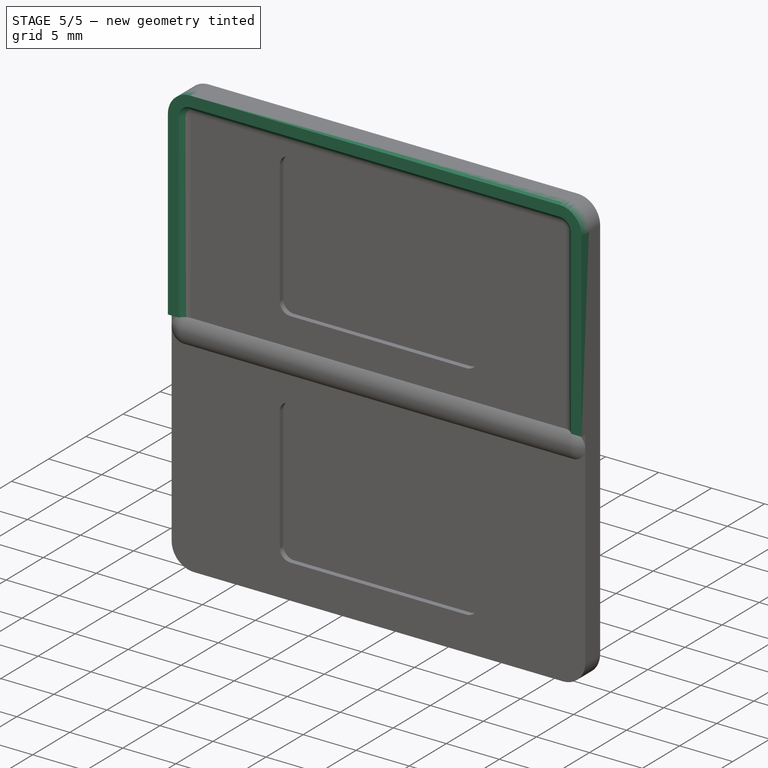
[diagram: stage 5 of 5 — iso view after this stage's code; geometry added in this stage tinted green]
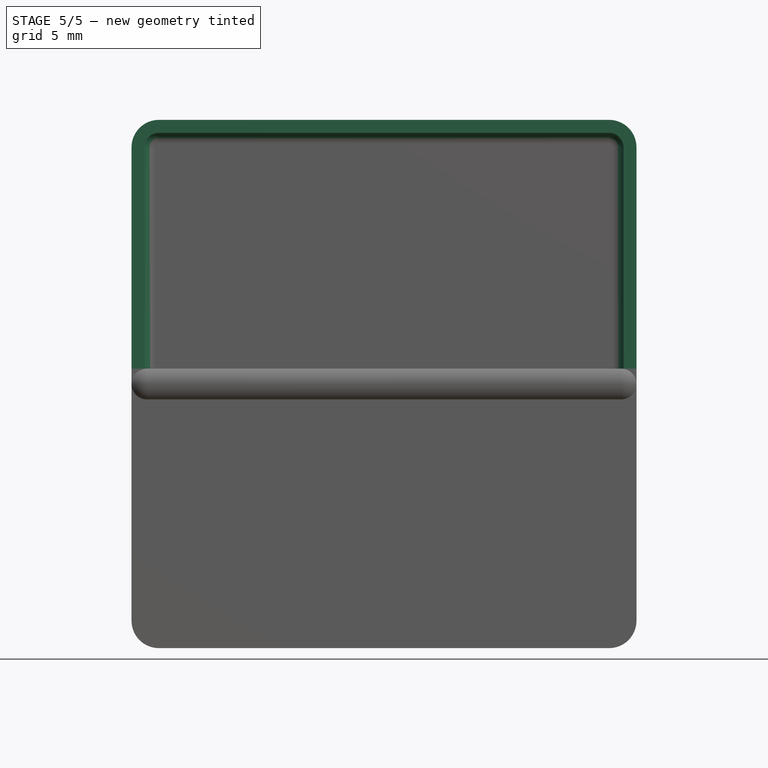
[diagram: stage 5 of 5 — front view after this stage's code; geometry added in this stage tinted green]
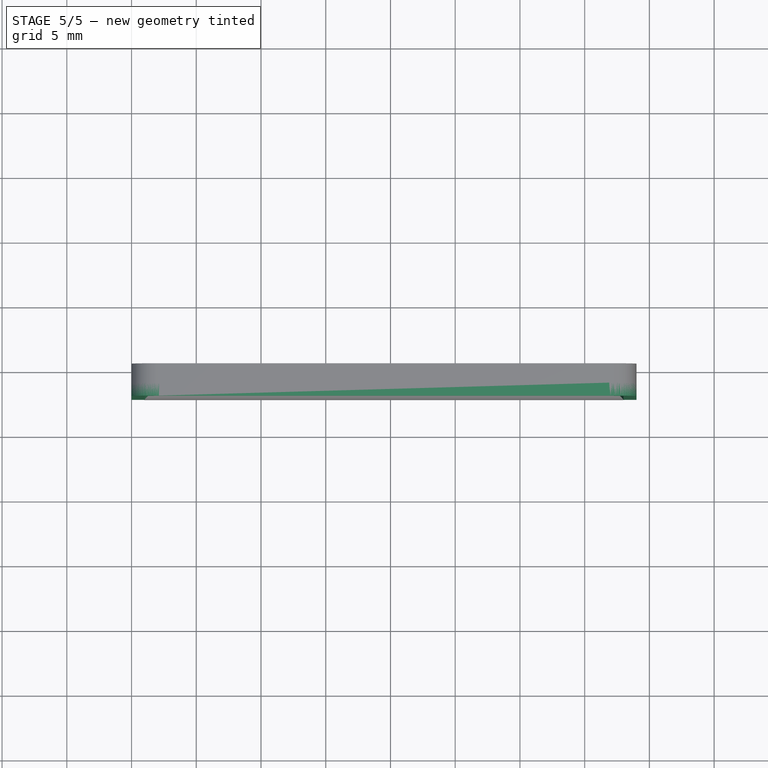
[diagram: stage 5 of 5 — top view after this stage's code; geometry added in this stage tinted green]
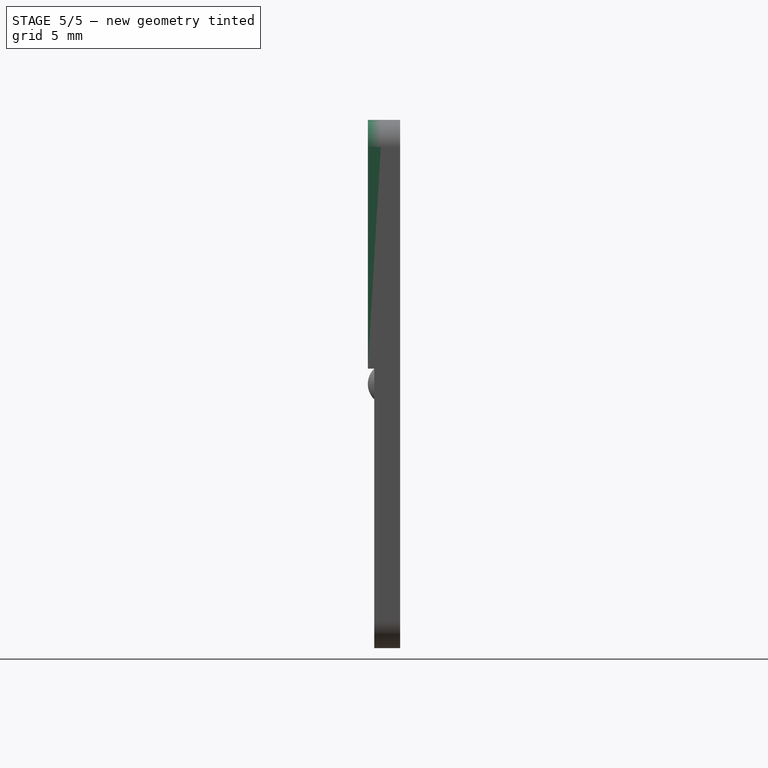
[diagram: stage 5 of 5 — right view after this stage's code; geometry added in this stage tinted green]
FEATURE [Sketcher::SketchObject] Sketch021
  ExternalGeometry = -> [Pocket006]
  FullyConstrained = true
  MapMode = 5
  Placement = pos=(27.81,0,0) rot=(0.57735,0.57735,0.57735;2.0944rad)
  Support = -> [Pocket006]
  sketch-geometry (3):
    g0: ArcOfCircle CenterX=-2.75 CenterY=1.25 CenterZ=0 NormalX=0 NormalY=0 NormalZ=1 AngleXU=0 Radius=1.25 StartAngle=6.28319 EndAngle=7.21048
    g1: LineSegment StartX=-2 StartY=2.25 StartZ=0 EndX=-1.5 EndY=2.25 EndZ=0
    g2: LineSegment StartX=-1.5 StartY=2.25 StartZ=0 EndX=-1.5 EndY=1.25 EndZ=0
  constraints (7):
    c: Coincident(g0,g-4)
    c: Coincident(g0,g-3)
    c: Tangent(g0,g-3)
    c: Coincident(g1,g0)
    c: Coincident(g1,g-4)
    c: Coincident(g2,g1)
    c: Coincident(g2,g0)
FEATURE [Sketcher::SketchObject] Sketch022  label="Pivot-LD-LR"
  ExternalGeometry = -> [Pocket006]
  FullyConstrained = true
  MapMode = 5
  Placement = pos=(27.81,0,0) rot=(0.57735,0.57735,0.57735;2.0944rad)
  sketch-geometry (1):
    g0: LineSegment StartX=-2 StartY=4.25 StartZ=0 EndX=-1.5 EndY=4.25 EndZ=0
  constraints (2):
    c: Coincident(g0,g-3)
    c: Coincident(g0,g-3)
FEATURE [PartDesign::Revolution] Revolution007
  Angle = 90
  Axis = (0,1,0)
  Base = (27.81,-2,4.25)
  BaseFeature = -> Pocket006
  Profile = -> Sketch021
  ReferenceAxis = -> Sketch022 [Edge1]
  Reversed = true
FEATURE [PartDesign::Pocket] Pocket007
  BaseFeature = -> Revolution007
  Direction = (-1,0,0)
  Length = 16.62
  Length2 = 5
  Profile = -> Revolution007 [Face49]
  Refine = true
  Type = 0
FEATURE [Sketcher::SketchObject] Sketch023
  ExternalGeometry = -> [Pocket007]
  FullyConstrained = true
  MapMode = 5
  Placement = pos=(0,-2,0) rot=(1,0,0;1.5708rad)
  Support = -> [Pocket007]
  sketch-geometry (14):
    g0: LineSegment StartX=36.89 StartY=40.8 StartZ=0 EndX=36.89 EndY=39.8 EndZ=0
    g1: LineSegment StartX=0 StartY=38.69 StartZ=0 EndX=0 EndY=21.59 EndZ=0
    g2: LineSegment StartX=0 StartY=21.59 StartZ=0 EndX=1 EndY=21.59 EndZ=0
    g3: LineSegment StartX=1 StartY=21.59 StartZ=0 EndX=1 EndY=38.69 EndZ=0
    g4: LineSegment StartX=2.11 StartY=39.8 StartZ=0 EndX=36.89 EndY=39.8 EndZ=0
    g5: LineSegment StartX=38 StartY=38.69 StartZ=0 EndX=38 EndY=21.59 EndZ=0
    g6: LineSegment StartX=38 StartY=21.59 StartZ=0 EndX=39 EndY=21.59 EndZ=0
    g7: LineSegment StartX=39 StartY=21.59 StartZ=0 EndX=39 EndY=38.69 EndZ=0
    g8: LineSegment StartX=36.89 StartY=40.8 StartZ=0 EndX=2.11 EndY=40.8 EndZ=0
    g9: ArcOfCircle CenterX=2.11 CenterY=38.69 CenterZ=0 NormalX=0 NormalY=0 NormalZ=1 AngleXU=0 Radius=2.11 StartAngle=1.5708 EndAngle=3.14159
    g10: ArcOfCircle CenterX=2.11 CenterY=38.69 CenterZ=0 NormalX=0 NormalY=0 NormalZ=1 AngleXU=0 Radius=1.11 StartAngle=1.5708 EndAngle=3.14159
    g11: ArcOfCircle CenterX=36.89 CenterY=38.69 CenterZ=0 NormalX=0 NormalY=0 NormalZ=1 AngleXU=0 Radius=1.11 StartAngle=1.6e-15 EndAngle=1.5708
    g12: ArcOfCircle CenterX=36.89 CenterY=38.69 CenterZ=0 NormalX=0 NormalY=0 NormalZ=1 AngleXU=0 Radius=2.11 StartAngle=7e-16 EndAngle=1.5708
    g13: LineSegment StartX=2.11 StartY=40.8 StartZ=0 EndX=2.11 EndY=39.8 EndZ=0
  constraints (33):
    c: Coincident(g0,g-3)
    c: Vertical(g0)
    c: Coincident(g2,g1)
    c: Horizontal(g2)
    c: Coincident(g3,g2)
    c: Vertical(g3)
    c: Coincident(g4,g0)
    c: Horizontal(g4)
    c: Vertical(g5)
    c: Coincident(g6,g5)
    c: Horizontal(g6)
    c: Coincident(g7,g6)
    c: Coincident(g7,g-3)
    c: Vertical(g7)
    c: Coincident(g8,g0)
    c: PointOnObject(g8,g-4)
    c: Coincident(g9,g8)
    c: Tangent(g10,g4) = 1.5708
    c: Tangent(g11,g5) = 1.5708
    c: Tangent(g11,g4) = 1.5708
    c: Equal(g2,g6)
    c: Equal(g0,g6)
    c: Equal(g5,g3)
    c: Tangent(g3,g10) = 1.5708
    c: Tangent(g12,g8) = -1.5708
    c: Tangent(g12,g7) = -1.5708
    c: Distance(g2) = 1
    c: Coincident(g-4,g1)
    c: Tangent(g9,g1) = -1.5708
    c: Coincident(g13,g8)
    c: Coincident(g13,g4)
    c: Vertical(g13)
    c: Coincident(g1,g-5)
FEATURE [PartDesign::Pad] Pad009
  BaseFeature = -> Pocket007
  Direction = (0,-1,2e-16)
  Length = 0.5
  Length2 = 10
  Profile = -> Sketch023
  ReferenceAxis = -> Sketch023 [N_Axis]
  Refine = true
  Type = 0
FEATURE [Sketcher::SketchObject] Sketch024
  ExternalGeometry = -> [Pad009]
  FullyConstrained = true
  MapMode = 5
  Placement = pos=(0,0,21.59) rot=(1,0,0;3.14159rad)
  Support = -> [Pad009]
  sketch-geometry (6):
    g0: LineSegment StartX=1 StartY=2 StartZ=0 EndX=1.86603 EndY=2 EndZ=0
    g1: LineSegment StartX=38 StartY=2 StartZ=0 EndX=37.134 EndY=2 EndZ=0
    g2: ArcOfCircle CenterX=37.134 CenterY=3 CenterZ=0 NormalX=0 NormalY=0 NormalZ=1 AngleXU=0 Radius=1 StartAngle=4.71239 EndAngle=5.75959
    g3: ArcOfCircle CenterX=1.86603 CenterY=3 CenterZ=0 NormalX=0 NormalY=0 NormalZ=1 AngleXU=0 Radius=1 StartAngle=3.66519 EndAngle=4.71239
    g4: LineSegment StartX=1 StartY=2.5 StartZ=0 EndX=1 EndY=2 EndZ=0
    g5: LineSegment StartX=38 StartY=2.5 StartZ=0 EndX=38 EndY=2 EndZ=0
  constraints (16):
    c: Coincident(g0,g-3)
    c: Horizontal(g0)
    c: Coincident(g1,g-4)
    c: Horizontal(g1)
    c: Coincident(g2,g1)
    c: Coincident(g2,g-4)
    c: Tangent(g2,g1)
    c: Coincident(g3,g0)
    c: Coincident(g3,g-3)
    c: Tangent(g3,g0)
    c: Coincident(g4,g3)
    c: Coincident(g4,g0)
    c: Coincident(g5,g2)
    c: Coincident(g5,g1)
    c: Radius(g2) = 1
    c: Equal(g2,g3)
FEATURE [PartDesign::Pad] Pad010
  BaseFeature = -> Pad009
  Direction = (0,0,-1)
  Length = 17.1
  Length2 = 10
  Profile = -> Sketch024
  ReferenceAxis = -> Sketch024 [N_Axis]
  Reversed = true
  Type = 0
FEATURE [Sketcher::SketchObject] Sketch025
  ExternalGeometry = -> [Pad010]
  FullyConstrained = true
  MapMode = 5
  Placement = pos=(0,0,38.69) rot=(0,0,1;0rad)
  Support = -> [Pad010]
  sketch-geometry (3):
    g0: LineSegment StartX=37.134 StartY=-2 StartZ=0 EndX=38 EndY=-2 EndZ=0
    g1: LineSegment StartX=38 StartY=-2 StartZ=0 EndX=38 EndY=-2.5 EndZ=0
    g2: ArcOfCircle CenterX=37.134 CenterY=-3 CenterZ=0 NormalX=0 NormalY=0 NormalZ=1 AngleXU=0 Radius=1 StartAngle=0.523599 EndAngle=1.5708
  constraints (7):
    c: Coincident(g0,g-3)
    c: Horizontal(g0)
    c: Coincident(g1,g0)
    c: Coincident(g1,g-3)
    c: Vertical(g1)
    c: Coincident(g2,g1)
    c: Tangent(g2,g0) = 1.5708
FEATURE [Sketcher::SketchObject] Sketch026  label="Pivot-UD-UR"
  ExternalGeometry = -> [Pad010]
  FullyConstrained = true
  MapMode = 5
  Placement = pos=(0,0,38.69) rot=(0,0,1;0rad)
  Support = -> [Pad010]
  sketch-geometry (1):
    g0: LineSegment StartX=36.89 StartY=-2.5 StartZ=0 EndX=36.89 EndY=-1.5 EndZ=0
  constraints (2):
    c: Coincident(g0,g-3)
    c: Coincident(g0,g-3)
FEATURE [PartDesign::Revolution] Revolution008
  Angle = 90
  Axis = (0,1,0)
  Base = (36.89,-2.5,38.69)
  BaseFeature = -> Pad010
  Profile = -> Sketch025
  ReferenceAxis = -> Sketch026 [Edge1]
  Reversed = true
FEATURE [Sketcher::SketchObject] Sketch027
  ExternalGeometry = -> [Revolution008]
  FullyConstrained = true
  MapMode = 5
  Placement = pos=(0,0,38.69) rot=(0,0,1;0rad)
  Support = -> [Revolution008]
  sketch-geometry (3):
    g0: LineSegment StartX=1 StartY=-2.5 StartZ=0 EndX=1 EndY=-2 EndZ=0
    g1: LineSegment StartX=1 StartY=-2 StartZ=0 EndX=1.86603 EndY=-2 EndZ=0
    g2: ArcOfCircle CenterX=1.86603 CenterY=-3 CenterZ=0 NormalX=0 NormalY=0 NormalZ=1 AngleXU=0 Radius=1 StartAngle=1.5708 EndAngle=2.61799
  constraints (7):
    c: Coincident(g0,g-3)
    c: Vertical(g0)
    c: Coincident(g1,g0)
    c: Coincident(g1,g-3)
    c: Horizontal(g1)
    c: Coincident(g2,g0)
    c: Tangent(g2,g1) = 1.5708
FEATURE [Sketcher::SketchObject] Sketch028  label="Pivot-UD-UL"
  ExternalGeometry = -> [Revolution008]
  FullyConstrained = true
  MapMode = 5
  Placement = pos=(0,0,38.69) rot=(0,0,1;0rad)
  Support = -> [Revolution008]
  sketch-geometry (1):
    g0: LineSegment StartX=2.11 StartY=-2.5 StartZ=0 EndX=2.11 EndY=-1.5 EndZ=0
  constraints (2):
    c: Coincident(g-3,g0)
    c: Coincident(g-3,g0)
FEATURE [PartDesign::Revolution] Revolution009
  Angle = 90
  Axis = (0,1,0)
  Base = (2.11,-2.5,38.69)
  BaseFeature = -> Revolution008
  Profile = -> Sketch027
  ReferenceAxis = -> Sketch028 [Edge1]
FEATURE [PartDesign::Pad] Pad011
  BaseFeature = -> Revolution009
  Direction = (-1,0,1e-16)
  Length = 10
  Length2 = 10
  Profile = -> Revolution009 [Face46]
  Refine = true
  Type = 3
  UpToFace = -> Revolution009 [Face45]
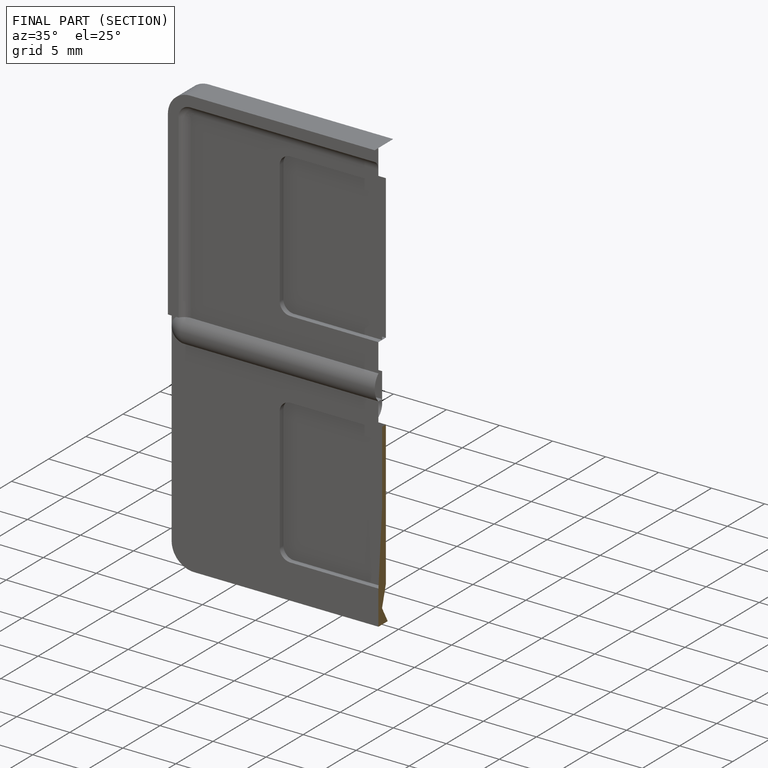
[diagram: finished part — half-section view (interior)]
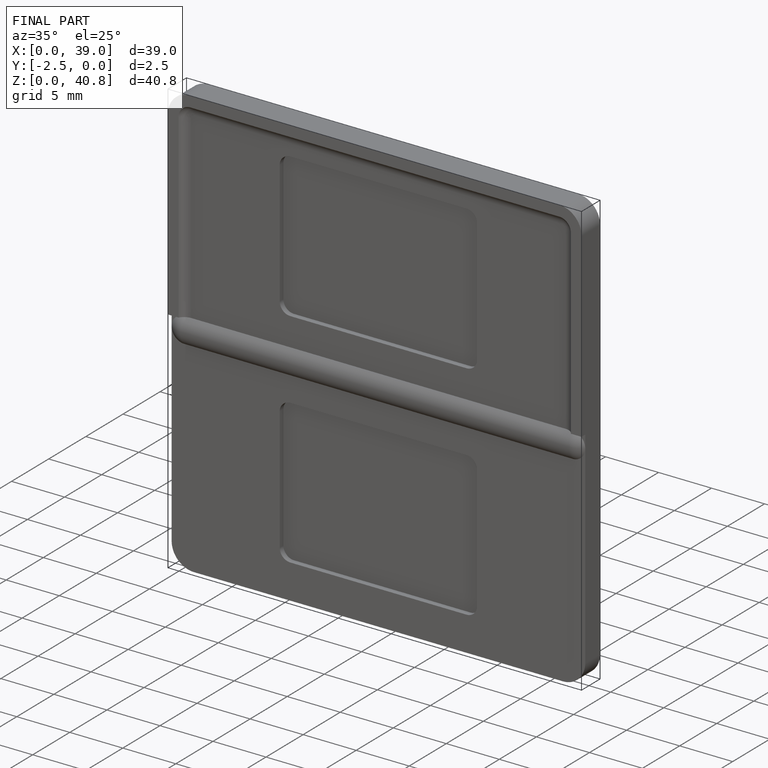
[diagram: finished part — iso view with bounding-box wireframe]
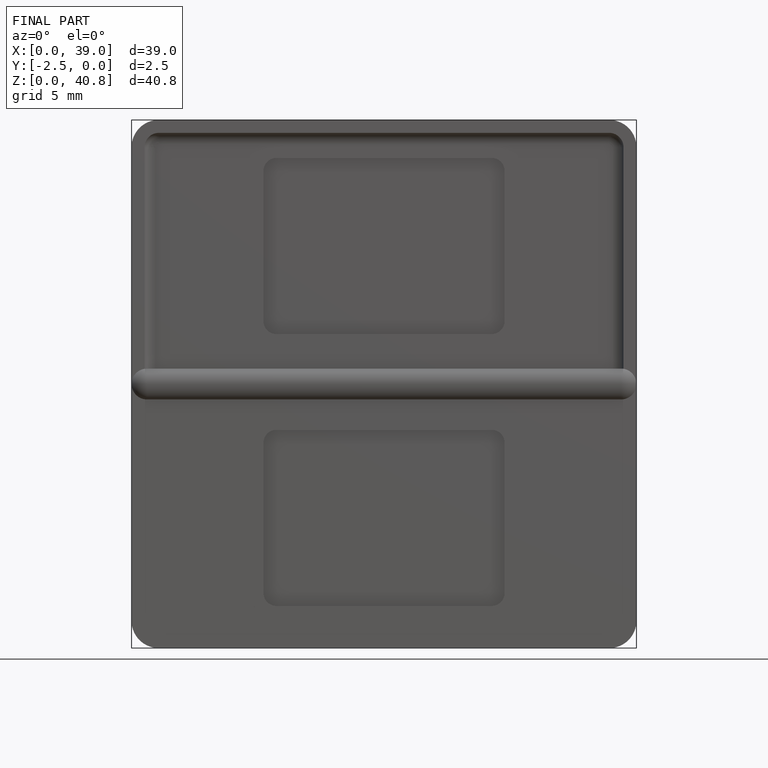
[diagram: finished part — front view with bounding-box wireframe]
